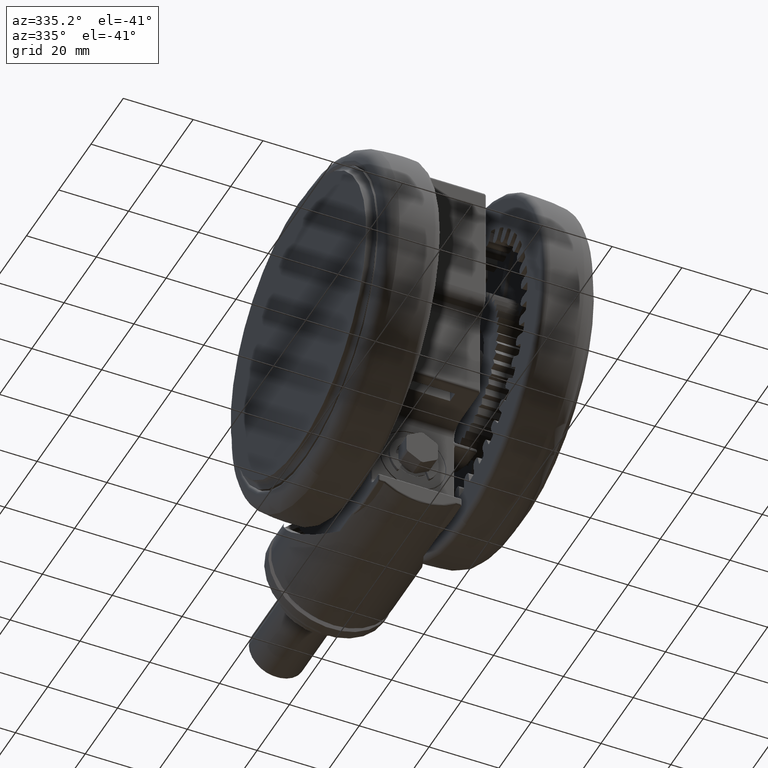
[diagram: clean part render]
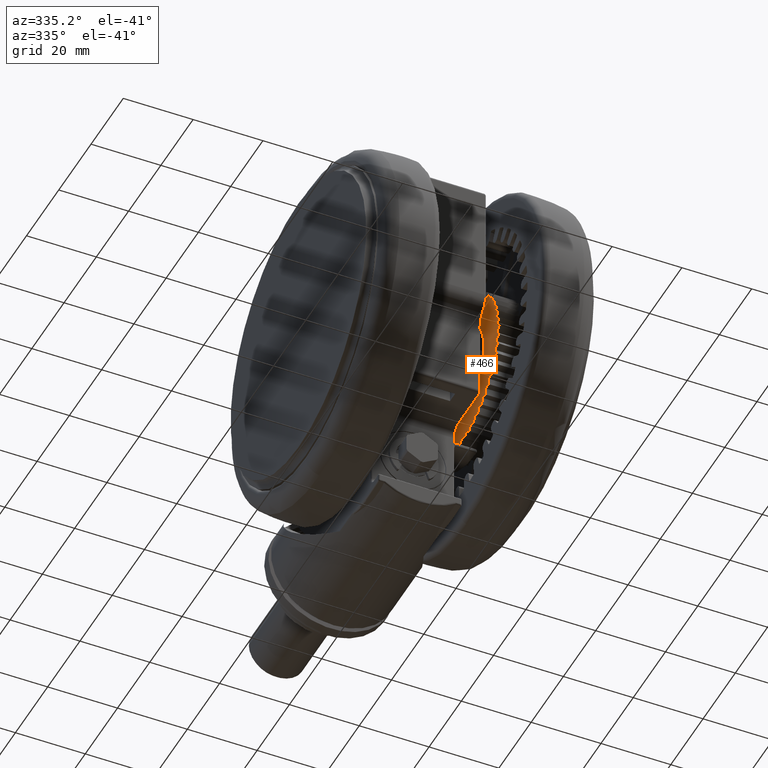
[diagram: same view with one face highlighted and labeled with its STEP entity id]
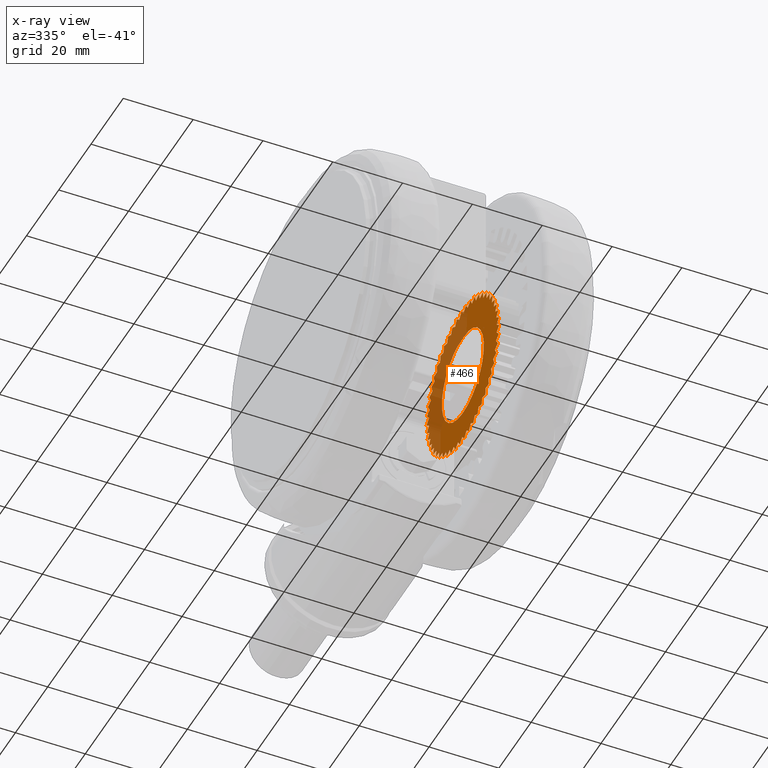
[diagram: x-ray of the same camera — body ghosted, the highlighted face saturated]
A machine part, auxiliary view. The second image highlights one B-rep face of the part: STEP entity #466.
The next image is the same camera in x-ray: the body ghosted, the highlighted face saturated — about 38% of this face is hidden behind the body in this view.
In plain terms, the highlighted planar face has unit normal (-1, -0, 0).
Its self-contained STEP definition (entity closure, byte-faithful):
#79 = DIRECTION ( 'NONE',  ( -0.0000000000000000000, 0.0000000000000000000, -1.000000000000000000 ) ) ;
#273 = CARTESIAN_POINT ( 'NONE',  ( 4.330216740733305900E-014, -13.00000000000013900, -18.09999999999995200 ) ) ;
#278 = DIRECTION ( 'NONE',  ( -0.2645463737174710300, -0.9643729652748132000, 0.0000000000000000000 ) ) ;
#325 = VECTOR ( 'NONE', #77778, 1000.000000000000000 ) ;
#466 = ADVANCED_FACE ( 'NONE', ( #11381, #9404 ), #7524, .T. ) ;
#543 = DIRECTION ( 'NONE',  ( 3.597816489175897900E-015, -1.000000000000000000, 0.0000000000000000000 ) ) ;
#658 = VECTOR ( 'NONE', #19376, 999.9999999999998900 ) ;
#738 = EDGE_CURVE ( 'NONE', #60218, #65271, #25188, .T. ) ;
#773 = VERTEX_POINT ( 'NONE', #55027 ) ;
#862 = DIRECTION ( 'NONE',  ( -0.9852291152350584100, -0.1712413223878625500, 0.0000000000000000000 ) ) ;
#887 = CARTESIAN_POINT ( 'NONE',  ( 9.580034060214153200, 20.35860868048529700, -18.09999999999995200 ) ) ;
#889 = DIRECTION ( 'NONE',  ( -0.0000000000000000000, 0.0000000000000000000, -1.000000000000000000 ) ) ;
#904 = ORIENTED_EDGE ( 'NONE', *, *, #62719, .F. ) ;
#983 = DIRECTION ( 'NONE',  ( -0.6009783641724981700, -0.7992652912497503200, 0.0000000000000000000 ) ) ;
#1035 = VERTEX_POINT ( 'NONE', #45845 ) ;
#1087 = DIRECTION ( 'NONE',  ( 0.5744339357106679200, 0.8185509474088661400, 0.0000000000000000000 ) ) ;
#1121 = DIRECTION ( 'NONE',  ( -0.0000000000000000000, 0.0000000000000000000, -1.000000000000000000 ) ) ;
#1156 = EDGE_CURVE ( 'NONE', #64414, #7117, #77401, .T. ) ;
#1190 = EDGE_CURVE ( 'NONE', #36340, #12239, #33022, .T. ) ;
#1238 = CARTESIAN_POINT ( 'NONE',  ( 12.69825900299367100, 7.254712998370417900, -18.09999999999995200 ) ) ;
#1241 = ORIENTED_EDGE ( 'NONE', *, *, #48178, .T. ) ;
#1268 = EDGE_CURVE ( 'NONE', #78269, #21536, #79574, .T. ) ;
#1331 = CARTESIAN_POINT ( 'NONE',  ( -17.73075838956596300, -11.25256446019484200, -18.09999999999995200 ) ) ;
#1578 = ORIENTED_EDGE ( 'NONE', *, *, #77978, .T. ) ;
#1596 = CARTESIAN_POINT ( 'NONE',  ( 10.49514608897152000, 10.18472144768717900, -18.09999999999995200 ) ) ;
#1604 = CARTESIAN_POINT ( 'NONE',  ( -12.34368362556614500, 16.98921641959761800, -18.09999999999995200 ) ) ;
#1614 = CARTESIAN_POINT ( 'NONE',  ( -19.00146984768217000, -8.941148898638728000, -18.09999999999995200 ) ) ;
#1716 = ORIENTED_EDGE ( 'NONE', *, *, #33966, .F. ) ;
#1829 = CARTESIAN_POINT ( 'NONE',  ( 6.008894022339734200, -13.33303547674457900, -18.09999999999995200 ) ) ;
#1923 = VECTOR ( 'NONE', #41551, 999.9999999999998900 ) ;
#2005 = CARTESIAN_POINT ( 'NONE',  ( -3.469446951953614200E-015, -1.387778780781445700E-013, -18.09999999999995200 ) ) ;
#2252 = EDGE_CURVE ( 'NONE', #75221, #64737, #8305, .T. ) ;
#2262 = CARTESIAN_POINT ( 'NONE',  ( -2.631760822178898600, -20.83443867674025200, -18.09999999999995200 ) ) ;
#2269 = EDGE_CURVE ( 'NONE', #78227, #10159, #6297, .T. ) ;
#2273 = VECTOR ( 'NONE', #56294, 1000.000000000000100 ) ;
#2430 = CARTESIAN_POINT ( 'NONE',  ( -3.469446951953614200E-015, -1.387778780781445700E-013, -18.09999999999995200 ) ) ;
#2485 = DIRECTION ( 'NONE',  ( -0.0000000000000000000, 0.0000000000000000000, -1.000000000000000000 ) ) ;
#2551 = EDGE_CURVE ( 'NONE', #74927, #65868, #20146, .T. ) ;
#2576 = DIRECTION ( 'NONE',  ( 3.597816489175897900E-015, -1.000000000000000000, 0.0000000000000000000 ) ) ;
#2591 = CARTESIAN_POINT ( 'NONE',  ( -12.92942419941392800, 6.834225067075563800, -18.09999999999995200 ) ) ;
#2616 = DIRECTION ( 'NONE',  ( -0.9458589912725776600, -0.3245778313884388200, 0.0000000000000000000 ) ) ;
#2632 = CARTESIAN_POINT ( 'NONE',  ( 16.18093042043164700, 13.38571965675162000, -18.09999999999995200 ) ) ;
#2635 = CIRCLE ( 'NONE', #51589, 21.00000000000000000 ) ;
#2729 = VERTEX_POINT ( 'NONE', #68745 ) ;
#2768 = CARTESIAN_POINT ( 'NONE',  ( -0.0002389668261978448300, -20.99999999864048700, -18.09999999999995200 ) ) ;
#2814 = DIRECTION ( 'NONE',  ( 0.1415923644446495100, -0.9899250488450999100, 0.0000000000000000000 ) ) ;
#2940 = VERTEX_POINT ( 'NONE', #1604 ) ;
#2980 = ORIENTED_EDGE ( 'NONE', *, *, #42927, .F. ) ;
#3004 = VERTEX_POINT ( 'NONE', #65436 ) ;
#3065 = CARTESIAN_POINT ( 'NONE',  ( 7.730393420141976600, 19.52539417194493900, -18.09999999999995200 ) ) ;
#3271 = VECTOR ( 'NONE', #17094, 1000.000000000000100 ) ;
#3275 = ORIENTED_EDGE ( 'NONE', *, *, #13513, .T. ) ;
#3300 = CARTESIAN_POINT ( 'NONE',  ( 20.95854629078559500, 1.318839405309598600, -18.09999999999995200 ) ) ;
#3321 = LINE ( 'NONE', #18468, #49763 ) ;
#3418 = CARTESIAN_POINT ( 'NONE',  ( 20.95854629078560200, -1.318839405310017400, -18.09999999999995200 ) ) ;
#3477 = VECTOR ( 'NONE', #52313, 999.9999999999998900 ) ;
#3486 = ORIENTED_EDGE ( 'NONE', *, *, #1190, .F. ) ;
#3545 = DIRECTION ( 'NONE',  ( 3.597816489175897900E-015, -1.000000000000000000, 0.0000000000000000000 ) ) ;
#3552 = VERTEX_POINT ( 'NONE', #15989 ) ;
#3573 = CARTESIAN_POINT ( 'NONE',  ( 19.71690030098695700, 10.83945766728843200, -18.09999999999995200 ) ) ;
#3639 = EDGE_CURVE ( 'NONE', #54506, #62010, #45637, .T. ) ;
#3749 = AXIS2_PLACEMENT_3D ( 'NONE', #20277, #70726, #32968 ) ;
#3785 = AXIS2_PLACEMENT_3D ( 'NONE', #57519, #19744, #63872 ) ;
#3891 = CARTESIAN_POINT ( 'NONE',  ( -3.469446951953614200E-015, -1.387778780781445700E-013, -18.09999999999995200 ) ) ;
#3896 = VERTEX_POINT ( 'NONE', #39107 ) ;
#3917 = CARTESIAN_POINT ( 'NONE',  ( -4.290439648676073900, 13.98101462759052500, -18.09999999999995200 ) ) ;
#3972 = DIRECTION ( 'NONE',  ( -0.0000000000000000000, 0.0000000000000000000, -1.000000000000000000 ) ) ;
#4044 = DIRECTION ( 'NONE',  ( 0.9852291152350595200, 0.1712413223878559200, 0.0000000000000000000 ) ) ;
#4164 = DIRECTION ( 'NONE',  ( 0.9989225180424556900, -0.04640908259942007300, 0.0000000000000000000 ) ) ;
#4254 = EDGE_CURVE ( 'NONE', #69430, #74684, #18887, .T. ) ;
#4265 = VERTEX_POINT ( 'NONE', #17533 ) ;
#4395 = CARTESIAN_POINT ( 'NONE',  ( -2.504322478768356200, -14.40850482590666600, -18.09999999999995200 ) ) ;
#4404 = CARTESIAN_POINT ( 'NONE',  ( -16.40179411698189700, -15.40230988339549600, -18.09999999999995200 ) ) ;
#4498 = AXIS2_PLACEMENT_3D ( 'NONE', #37626, #81728, #43982 ) ;
#4626 = DIRECTION ( 'NONE',  ( -0.0000000000000000000, 0.0000000000000000000, -1.000000000000000000 ) ) ;
#4670 = EDGE_CURVE ( 'NONE', #6977, #59428, #75048, .T. ) ;
#4760 = ORIENTED_EDGE ( 'NONE', *, *, #62141, .T. ) ;
#4802 = VECTOR ( 'NONE', #23766, 1000.000000000000100 ) ;
#4877 = DIRECTION ( 'NONE',  ( -0.4960649668394147000, -0.8682854073832004800, 0.0000000000000000000 ) ) ;
#4907 = VERTEX_POINT ( 'NONE', #73473 ) ;
#4921 = EDGE_CURVE ( 'NONE', #11336, #70590, #23704, .T. ) ;
#5051 = ORIENTED_EDGE ( 'NONE', *, *, #13817, .F. ) ;
#5158 = AXIS2_PLACEMENT_3D ( 'NONE', #13509, #57646, #19869 ) ;
#5247 = VECTOR ( 'NONE', #29099, 999.9999999999998900 ) ;
#5292 = VERTEX_POINT ( 'NONE', #46136 ) ;
#5313 = VECTOR ( 'NONE', #983, 1000.000000000000100 ) ;
#5320 = EDGE_CURVE ( 'NONE', #46195, #24445, #34678, .T. ) ;
#5369 = ORIENTED_EDGE ( 'NONE', *, *, #21372, .T. ) ;
#5497 = ORIENTED_EDGE ( 'NONE', *, *, #16853, .T. ) ;
#5507 = CARTESIAN_POINT ( 'NONE',  ( -5.222256170880211100, -20.34030581101740500, -18.09999999999995200 ) ) ;
#5574 = CARTESIAN_POINT ( 'NONE',  ( -4.746795621064244100, -13.83273558366835600, -18.09999999999995200 ) ) ;
#5612 = EDGE_CURVE ( 'NONE', #29275, #50214, #61219, .T. ) ;
#5625 = VERTEX_POINT ( 'NONE', #74183 ) ;
#5754 = CARTESIAN_POINT ( 'NONE',  ( -3.469446951953614200E-015, -1.387778780781445700E-013, -18.09999999999995200 ) ) ;
#5832 = CARTESIAN_POINT ( 'NONE',  ( -20.62798748604893700, -3.935242340111933000, -18.09999999999995200 ) ) ;
#5910 = VECTOR ( 'NONE', #34414, 1000.000000000000200 ) ;
#6040 = CIRCLE ( 'NONE', #15693, 21.00000000000000000 ) ;
#6047 = EDGE_CURVE ( 'NONE', #13246, #14077, #63130, .T. ) ;
#6112 = AXIS2_PLACEMENT_3D ( 'NONE', #2005, #46266, #8417 ) ;
#6116 = VERTEX_POINT ( 'NONE', #12286 ) ;
#6181 = EDGE_CURVE ( 'NONE', #44355, #61777, #38445, .T. ) ;
#6185 = EDGE_CURVE ( 'NONE', #60170, #58319, #71993, .T. ) ;
#6233 = EDGE_CURVE ( 'NONE', #75329, #22714, #36472, .T. ) ;
#6237 = CARTESIAN_POINT ( 'NONE',  ( 17.73075838956578900, -11.25256446019511400, -18.09999999999995200 ) ) ;
#6297 = CIRCLE ( 'NONE', #32470, 21.00000000000000000 ) ;
#6566 = CARTESIAN_POINT ( 'NONE',  ( -16.18062577405640200, -13.38608791095983900, -18.09999999999995200 ) ) ;
#6642 = CARTESIAN_POINT ( 'NONE',  ( 10.82361990185115100, -9.834932364591569600, -18.09999999999995200 ) ) ;
#6721 = DIRECTION ( 'NONE',  ( 0.3528216945604031300, 0.9356905748416650700, 0.0000000000000000000 ) ) ;
#6813 = CIRCLE ( 'NONE', #36477, 21.00000000000000000 ) ;
#6834 = ORIENTED_EDGE ( 'NONE', *, *, #43433, .F. ) ;
#6842 = VECTOR ( 'NONE', #67492, 1000.000000000000100 ) ;
#6909 = DIRECTION ( 'NONE',  ( -0.0000000000000000000, 0.0000000000000000000, -1.000000000000000000 ) ) ;
#6977 = VERTEX_POINT ( 'NONE', #27633 ) ;
#7021 = CARTESIAN_POINT ( 'NONE',  ( 6.443067199534013400, -13.12872908769651700, -18.09999999999995200 ) ) ;
#7090 = ORIENTED_EDGE ( 'NONE', *, *, #21718, .T. ) ;
#7117 = VERTEX_POINT ( 'NONE', #29518 ) ;
#7237 = LINE ( 'NONE', #14688, #55677 ) ;
#7286 = LINE ( 'NONE', #6642, #72501 ) ;
#7300 = VECTOR ( 'NONE', #4877, 1000.000000000000100 ) ;
#7314 = ORIENTED_EDGE ( 'NONE', *, *, #53594, .T. ) ;
#7316 = ORIENTED_EDGE ( 'NONE', *, *, #8580, .F. ) ;
#7346 = VERTEX_POINT ( 'NONE', #19310 ) ;
#7367 = DIRECTION ( 'NONE',  ( 0.9559980607330609300, 0.2933729842276324700, 0.0000000000000000000 ) ) ;
#7460 = EDGE_CURVE ( 'NONE', #71863, #68147, #77696, .T. ) ;
#7524 = PLANE ( 'NONE',  #3749 ) ;
#7608 = VECTOR ( 'NONE', #69333, 999.9999999999998900 ) ;
#7679 = CIRCLE ( 'NONE', #35540, 21.00000000000000000 ) ;
#7988 = VECTOR ( 'NONE', #79423, 1000.000000000000000 ) ;
#8034 = VECTOR ( 'NONE', #28286, 999.9999999999998900 ) ;
#8039 = ORIENTED_EDGE ( 'NONE', *, *, #26613, .T. ) ;
#8044 = VERTEX_POINT ( 'NONE', #74384 ) ;
#8139 = EDGE_CURVE ( 'NONE', #31002, #56674, #40707, .T. ) ;
#8160 = AXIS2_PLACEMENT_3D ( 'NONE', #15437, #59539, #21770 ) ;
#8208 = ORIENTED_EDGE ( 'NONE', *, *, #29873, .T. ) ;
#8304 = VECTOR ( 'NONE', #53958, 1000.000000000000100 ) ;
#8305 = LINE ( 'NONE', #23031, #39935 ) ;
#8394 = EDGE_CURVE ( 'NONE', #69950, #60465, #22903, .T. ) ;
#8417 = DIRECTION ( 'NONE',  ( 3.597816489175897900E-015, -1.000000000000000000, 0.0000000000000000000 ) ) ;
#8431 = CARTESIAN_POINT ( 'NONE',  ( -2.631760822178748500, 20.83443867674000000, -18.09999999999995200 ) ) ;
#8478 = ORIENTED_EDGE ( 'NONE', *, *, #15846, .F. ) ;
#8489 = LINE ( 'NONE', #66637, #56889 ) ;
#8494 = EDGE_CURVE ( 'NONE', #21536, #38267, #54519, .T. ) ;
#8551 = CARTESIAN_POINT ( 'NONE',  ( 20.62798748604885900, -3.935242340112228700, -18.09999999999995200 ) ) ;
#8580 = EDGE_CURVE ( 'NONE', #77143, #66173, #78118, .T. ) ;
#8826 = DIRECTION ( 'NONE',  ( 3.597816489175897900E-015, -1.000000000000000000, 0.0000000000000000000 ) ) ;
#8857 = CARTESIAN_POINT ( 'NONE',  ( 20.62807704188493600, 3.934772871978680500, -18.09999999999995200 ) ) ;
#9019 = EDGE_CURVE ( 'NONE', #18867, #3004, #78042, .T. ) ;
#9022 = VERTEX_POINT ( 'NONE', #66497 ) ;
#9042 = CARTESIAN_POINT ( 'NONE',  ( 19.97211299609482200, 6.489584152410633200, -18.09999999999995200 ) ) ;
#9116 = LINE ( 'NONE', #20595, #42723 ) ;
#9160 = CARTESIAN_POINT ( 'NONE',  ( -6.443067199534176800, -13.12872908769642200, -18.09999999999995200 ) ) ;
#9164 = CARTESIAN_POINT ( 'NONE',  ( -6.008894022339915400, -13.33303547674450100, -18.09999999999995200 ) ) ;
#9180 = LINE ( 'NONE', #1238, #40796 ) ;
#9291 = DIRECTION ( 'NONE',  ( 0.9968623160129352900, 0.07915505614505564900, 0.0000000000000000000 ) ) ;
#9404 = FACE_BOUND ( 'NONE', #38686, .T. ) ;
#9441 = EDGE_CURVE ( 'NONE', #25731, #29275, #50346, .T. ) ;
#9474 = ORIENTED_EDGE ( 'NONE', *, *, #18534, .F. ) ;
#9551 = CARTESIAN_POINT ( 'NONE',  ( 11.97091630120698700, 8.400821704174525500, -18.09999999999995200 ) ) ;
#9697 = CARTESIAN_POINT ( 'NONE',  ( 2.632234987181226900, 20.83437877576997000, -18.09999999999995200 ) ) ;
#9702 = CARTESIAN_POINT ( 'NONE',  ( -12.05610288702757800, -18.99737832379538500, -18.09999999999995200 ) ) ;
#9791 = DIRECTION ( 'NONE',  ( -0.0000000000000000000, 0.0000000000000000000, -1.000000000000000000 ) ) ;
#9808 = LINE ( 'NONE', #28260, #11766 ) ;
#9920 = DIRECTION ( 'NONE',  ( -0.0000000000000000000, 0.0000000000000000000, -1.000000000000000000 ) ) ;
#9957 = DIRECTION ( 'NONE',  ( 0.8977202214608007700, 0.4405660041133118700, 0.0000000000000000000 ) ) ;
#10159 = VERTEX_POINT ( 'NONE', #36309 ) ;
#10189 = EDGE_CURVE ( 'NONE', #38566, #6116, #28515, .T. ) ;
#10217 = VERTEX_POINT ( 'NONE', #18081 ) ;
#10238 = CARTESIAN_POINT ( 'NONE',  ( -3.469446951953614200E-015, -1.387778780781445700E-013, -18.09999999999995200 ) ) ;
#10294 = CARTESIAN_POINT ( 'NONE',  ( 4.216079578178665500, -22.10146314139567600, -18.09999999999995200 ) ) ;
#10295 = DIRECTION ( 'NONE',  ( 3.597816489175897900E-015, -1.000000000000000000, 0.0000000000000000000 ) ) ;
#10307 = DIRECTION ( 'NONE',  ( -0.0000000000000000000, 0.0000000000000000000, -1.000000000000000000 ) ) ;
#10320 = ORIENTED_EDGE ( 'NONE', *, *, #37511, .F. ) ;
#10405 = CARTESIAN_POINT ( 'NONE',  ( -3.469446951953614200E-015, -1.387778780781445700E-013, -18.09999999999995200 ) ) ;
#10581 = DIRECTION ( 'NONE',  ( -0.0000000000000000000, 0.0000000000000000000, -1.000000000000000000 ) ) ;
#10605 = CARTESIAN_POINT ( 'NONE',  ( -20.62807704188491800, 3.934772871978681400, -18.09999999999995200 ) ) ;
#10625 = ORIENTED_EDGE ( 'NONE', *, *, #45702, .T. ) ;
#10762 = LINE ( 'NONE', #30413, #77888 ) ;
#10766 = DIRECTION ( 'NONE',  ( 0.2327664647555141000, 0.9725326590327031400, 0.0000000000000000000 ) ) ;
#10797 = ORIENTED_EDGE ( 'NONE', *, *, #48361, .F. ) ;
#11119 = CARTESIAN_POINT ( 'NONE',  ( -6.008894022339831100, 13.33303547674424100, -18.09999999999995200 ) ) ;
#11122 = EDGE_CURVE ( 'NONE', #68715, #17742, #2635, .T. ) ;
#11199 = VERTEX_POINT ( 'NONE', #79666 ) ;
#11254 = VECTOR ( 'NONE', #20633, 999.9999999999998900 ) ;
#11274 = CIRCLE ( 'NONE', #18537, 21.00000000000000000 ) ;
#11334 = CIRCLE ( 'NONE', #25637, 21.00000000000000000 ) ;
#11336 = VERTEX_POINT ( 'NONE', #68308 ) ;
#11358 = CIRCLE ( 'NONE', #78200, 21.00000000000000000 ) ;
#11381 = FACE_OUTER_BOUND ( 'NONE', #81230, .T. ) ;
#11438 = AXIS2_PLACEMENT_3D ( 'NONE', #48371, #10581, #54780 ) ;
#11474 = DIRECTION ( 'NONE',  ( -0.9968623160129358500, -0.07915505614504829400, 0.0000000000000000000 ) ) ;
#11540 = CARTESIAN_POINT ( 'NONE',  ( 14.10349360292788000, 3.868864250397976900, -18.09999999999995200 ) ) ;
#11545 = CARTESIAN_POINT ( 'NONE',  ( -3.469446951953614200E-015, -1.387778780781445700E-013, -18.09999999999995200 ) ) ;
#11701 = VERTEX_POINT ( 'NONE', #61364 ) ;
#11731 = ORIENTED_EDGE ( 'NONE', *, *, #18582, .T. ) ;
#11766 = VECTOR ( 'NONE', #34622, 999.9999999999998900 ) ;
#11876 = LINE ( 'NONE', #63106, #43503 ) ;
#11965 = CARTESIAN_POINT ( 'NONE',  ( 7.632584547731982000, 12.47478639166040900, -18.09999999999995200 ) ) ;
#11983 = VERTEX_POINT ( 'NONE', #15003 ) ;
#12023 = VECTOR ( 'NONE', #41122, 999.9999999999998900 ) ;
#12135 = DIRECTION ( 'NONE',  ( 3.597816489175897900E-015, -1.000000000000000000, 0.0000000000000000000 ) ) ;
#12239 = VERTEX_POINT ( 'NONE', #61859 ) ;
#12241 = DIRECTION ( 'NONE',  ( 0.9559980607330593700, -0.2933729842276376300, 0.0000000000000000000 ) ) ;
#12286 = CARTESIAN_POINT ( 'NONE',  ( -20.62798748604891600, 3.935242340111816600, -18.09999999999995200 ) ) ;
#12501 = EDGE_CURVE ( 'NONE', #15893, #50479, #36064, .T. ) ;
#12629 = LINE ( 'NONE', #11540, #79777 ) ;
#12738 = VERTEX_POINT ( 'NONE', #63306 ) ;
#12904 = DIRECTION ( 'NONE',  ( -0.0000000000000000000, 0.0000000000000000000, -1.000000000000000000 ) ) ;
#12924 = VERTEX_POINT ( 'NONE', #35189 ) ;
#12994 = VECTOR ( 'NONE', #61305, 1000.000000000000100 ) ;
#13134 = EDGE_CURVE ( 'NONE', #81275, #69456, #22108, .T. ) ;
#13246 = VERTEX_POINT ( 'NONE', #13571 ) ;
#13286 = CARTESIAN_POINT ( 'NONE',  ( -3.469446951953614200E-015, -1.387778780781445700E-013, -18.09999999999995200 ) ) ;
#13314 = VERTEX_POINT ( 'NONE', #64611 ) ;
#13407 = DIRECTION ( 'NONE',  ( 0.9116903457277396600, -0.4108779788536183200, 0.0000000000000000000 ) ) ;
#13509 = CARTESIAN_POINT ( 'NONE',  ( -3.469446951953614200E-015, -1.387778780781445700E-013, -18.09999999999995200 ) ) ;
#13513 = EDGE_CURVE ( 'NONE', #78360, #32933, #15156, .T. ) ;
#13571 = CARTESIAN_POINT ( 'NONE',  ( -22.32258077957579400, -2.819997755196753900, -18.09999999999995200 ) ) ;
#13817 = EDGE_CURVE ( 'NONE', #8044, #11199, #30019, .T. ) ;
#13878 = CARTESIAN_POINT ( 'NONE',  ( 9.135904655321338600, -11.41980247310420700, -18.09999999999995200 ) ) ;
#13884 = VECTOR ( 'NONE', #81299, 1000.000000000000100 ) ;
#13931 = CIRCLE ( 'NONE', #63917, 21.00000000000000000 ) ;
#14017 = VECTOR ( 'NONE', #79885, 1000.000000000000000 ) ;
#14077 = VERTEX_POINT ( 'NONE', #54860 ) ;
#14188 = LINE ( 'NONE', #49067, #79330 ) ;
#14209 = AXIS2_PLACEMENT_3D ( 'NONE', #63621, #25842, #69936 ) ;
#14246 = CARTESIAN_POINT ( 'NONE',  ( 19.00146984768211700, 8.941148898638587600, -18.09999999999995200 ) ) ;
#14320 = AXIS2_PLACEMENT_3D ( 'NONE', #31894, #76007, #38246 ) ;
#14459 = VECTOR ( 'NONE', #12241, 1000.000000000000100 ) ;
#14548 = ORIENTED_EDGE ( 'NONE', *, *, #6047, .F. ) ;
#14563 = AXIS2_PLACEMENT_3D ( 'NONE', #29734, #73880, #36124 ) ;
#14688 = CARTESIAN_POINT ( 'NONE',  ( 14.53732064245325100, 1.594663266754988700, -18.09999999999995200 ) ) ;
#14715 = AXIS2_PLACEMENT_3D ( 'NONE', #47629, #9791, #54001 ) ;
#14889 = VERTEX_POINT ( 'NONE', #31283 ) ;
#15003 = CARTESIAN_POINT ( 'NONE',  ( 14.34203976934553500, 17.33654796245511400, -18.09999999999995200 ) ) ;
#15007 = LINE ( 'NONE', #40926, #48555 ) ;
#15031 = ORIENTED_EDGE ( 'NONE', *, *, #73001, .T. ) ;
#15156 = LINE ( 'NONE', #35618, #63506 ) ;
#15335 = CARTESIAN_POINT ( 'NONE',  ( -3.469446951953614200E-015, -1.387778780781445700E-013, -18.09999999999995200 ) ) ;
#15371 = CIRCLE ( 'NONE', #64281, 21.00000000000000000 ) ;
#15437 = CARTESIAN_POINT ( 'NONE',  ( -3.469446951953614200E-015, -1.387778780781445700E-013, -18.09999999999995200 ) ) ;
#15537 = LINE ( 'NONE', #26522, #61913 ) ;
#15574 = LINE ( 'NONE', #41359, #61947 ) ;
#15693 = AXIS2_PLACEMENT_3D ( 'NONE', #3891, #48116, #10295 ) ;
#15794 = EDGE_CURVE ( 'NONE', #36340, #9022, #18158, .T. ) ;
#15812 = CARTESIAN_POINT ( 'NONE',  ( 14.37566342289094100, 15.30817759080916200, -18.09999999999995200 ) ) ;
#15846 = EDGE_CURVE ( 'NONE', #43627, #17742, #14188, .T. ) ;
#15893 = VERTEX_POINT ( 'NONE', #68329 ) ;
#15977 = DIRECTION ( 'NONE',  ( -0.0000000000000000000, 0.0000000000000000000, -1.000000000000000000 ) ) ;
#15983 = DIRECTION ( 'NONE',  ( -0.7808667188357977200, -0.6246976608045008400, 0.0000000000000000000 ) ) ;
#15989 = CARTESIAN_POINT ( 'NONE',  ( -19.00126635343028500, 8.941581345936272700, -18.09999999999995200 ) ) ;
#16008 = AXIS2_PLACEMENT_3D ( 'NONE', #18395, #62508, #24713 ) ;
#16119 = CARTESIAN_POINT ( 'NONE',  ( -18.20288237343635300, 13.22516817658047500, -18.09999999999995200 ) ) ;
#16185 = VECTOR ( 'NONE', #10766, 1000.000000000000100 ) ;
#16266 = ORIENTED_EDGE ( 'NONE', *, *, #12501, .F. ) ;
#16339 = LINE ( 'NONE', #72540, #81436 ) ;
#16346 = CARTESIAN_POINT ( 'NONE',  ( 13.50738607663565800, -5.605993558018629300, -18.09999999999995200 ) ) ;
#16439 = ORIENTED_EDGE ( 'NONE', *, *, #1156, .F. ) ;
#16505 = CARTESIAN_POINT ( 'NONE',  ( 11.68887279930208900, -8.789021280983096300, -18.09999999999995200 ) ) ;
#16566 = CARTESIAN_POINT ( 'NONE',  ( -12.34329696911954200, -16.98949734195008100, -18.09999999999995200 ) ) ;
#16621 = DIRECTION ( 'NONE',  ( 3.597816489175897900E-015, -1.000000000000000000, 0.0000000000000000000 ) ) ;
#16775 = DIRECTION ( 'NONE',  ( 3.597816489175897900E-015, -1.000000000000000000, 0.0000000000000000000 ) ) ;
#16808 = ORIENTED_EDGE ( 'NONE', *, *, #4670, .T. ) ;
#16853 = EDGE_CURVE ( 'NONE', #64414, #67991, #61532, .T. ) ;
#16872 = CARTESIAN_POINT ( 'NONE',  ( -3.469446951953614200E-015, -1.387778780781445700E-013, -18.09999999999995200 ) ) ;
#16922 = CIRCLE ( 'NONE', #59581, 21.00000000000000000 ) ;
#16950 = CARTESIAN_POINT ( 'NONE',  ( -16.18093042043175300, -13.38571965675175900, -18.09999999999995200 ) ) ;
#16961 = DIRECTION ( 'NONE',  ( 0.7808667188357982800, -0.6246976608045002900, 0.0000000000000000000 ) ) ;
#17021 = VERTEX_POINT ( 'NONE', #4404 ) ;
#17094 = DIRECTION ( 'NONE',  ( -0.3833283286444206800, 0.9236121439536593100, 0.0000000000000000000 ) ) ;
#17139 = CARTESIAN_POINT ( 'NONE',  ( -14.22282522343163600, 3.404098274073775500, -18.09999999999995200 ) ) ;
#17192 = DIRECTION ( 'NONE',  ( -0.0000000000000000000, 0.0000000000000000000, -1.000000000000000000 ) ) ;
#17258 = VERTEX_POINT ( 'NONE', #38366 ) ;
#17282 = DIRECTION ( 'NONE',  ( -0.0000000000000000000, 0.0000000000000000000, -1.000000000000000000 ) ) ;
#17417 = CARTESIAN_POINT ( 'NONE',  ( -3.469446951953614200E-015, -1.387778780781445700E-013, -18.09999999999995200 ) ) ;
#17509 = AXIS2_PLACEMENT_3D ( 'NONE', #76212, #38450, #543 ) ;
#17510 = CARTESIAN_POINT ( 'NONE',  ( -12.34329696911942300, 16.98949734194991400, -18.09999999999995200 ) ) ;
#17533 = CARTESIAN_POINT ( 'NONE',  ( -19.00146984768208500, 8.941148898638593000, -18.09999999999995200 ) ) ;
#17560 = ORIENTED_EDGE ( 'NONE', *, *, #64087, .T. ) ;
#17620 = ORIENTED_EDGE ( 'NONE', *, *, #30859, .F. ) ;
#17694 = CARTESIAN_POINT ( 'NONE',  ( -4.290439648676153800, -13.98101462759079400, -18.09999999999995200 ) ) ;
#17711 = VECTOR ( 'NONE', #13407, 1000.000000000000200 ) ;
#17734 = EDGE_CURVE ( 'NONE', #2729, #33514, #15007, .T. ) ;
#17742 = VERTEX_POINT ( 'NONE', #15812 ) ;
#17796 = ORIENTED_EDGE ( 'NONE', *, *, #32081, .F. ) ;
#17805 = LINE ( 'NONE', #13878, #36560 ) ;
#17835 = VERTEX_POINT ( 'NONE', #54743 ) ;
#17859 = EDGE_CURVE ( 'NONE', #67648, #17258, #23867, .T. ) ;
#17922 = AXIS2_PLACEMENT_3D ( 'NONE', #37094, #81196, #43441 ) ;
#17928 = DIRECTION ( 'NONE',  ( 3.597816489175897900E-015, -1.000000000000000000, 0.0000000000000000000 ) ) ;
#18009 = VECTOR ( 'NONE', #52036, 999.9999999999998900 ) ;
#18081 = CARTESIAN_POINT ( 'NONE',  ( -20.95854629078560200, -1.318839405309724100, -18.09999999999995200 ) ) ;
#18158 = LINE ( 'NONE', #54922, #3271 ) ;
#18194 = DIRECTION ( 'NONE',  ( 0.6724959896283672100, 0.7401007660675422700, 0.0000000000000000000 ) ) ;
#18210 = ORIENTED_EDGE ( 'NONE', *, *, #8494, .T. ) ;
#18277 = VERTEX_POINT ( 'NONE', #78331 ) ;
#18395 = CARTESIAN_POINT ( 'NONE',  ( -3.469446951953614200E-015, -1.387778780781445700E-013, -18.09999999999995200 ) ) ;
#18444 = CIRCLE ( 'NONE', #41930, 21.00000000000000000 ) ;
#18468 = CARTESIAN_POINT ( 'NONE',  ( -10.82361990185107800, 9.834932364591363600, -18.09999999999995200 ) ) ;
#18495 = EDGE_CURVE ( 'NONE', #70209, #37851, #45489, .T. ) ;
#18506 = CARTESIAN_POINT ( 'NONE',  ( 2.975664240051755000, 14.31859157620989200, -18.09999999999995200 ) ) ;
#18525 = CIRCLE ( 'NONE', #57666, 21.00000000000000000 ) ;
#18534 = EDGE_CURVE ( 'NONE', #28182, #12924, #11876, .T. ) ;
#18537 = AXIS2_PLACEMENT_3D ( 'NONE', #71928, #34192, #78267 ) ;
#18582 = EDGE_CURVE ( 'NONE', #15893, #12738, #39534, .T. ) ;
#18672 = CARTESIAN_POINT ( 'NONE',  ( 6.952882373436183100, -21.39877161664116300, -18.09999999999995200 ) ) ;
#18711 = CARTESIAN_POINT ( 'NONE',  ( 12.69825900299362300, -7.254712998370743000, -18.09999999999995200 ) ) ;
#18803 = EDGE_CURVE ( 'NONE', #54664, #34183, #57269, .T. ) ;
#18867 = VERTEX_POINT ( 'NONE', #80691 ) ;
#18887 = LINE ( 'NONE', #74046, #50459 ) ;
#18916 = CARTESIAN_POINT ( 'NONE',  ( -20.91997093248572500, -8.282802435405193000, -18.09999999999995200 ) ) ;
#19036 = LINE ( 'NONE', #80973, #50621 ) ;
#19310 = CARTESIAN_POINT ( 'NONE',  ( -19.97226068571552900, -6.489129610496601000, -18.09999999999995200 ) ) ;
#19376 = DIRECTION ( 'NONE',  ( -0.2327664647555010800, 0.9725326590327062500, 0.0000000000000000000 ) ) ;
#19469 = ORIENTED_EDGE ( 'NONE', *, *, #23984, .T. ) ;
#19506 = LINE ( 'NONE', #76144, #34324 ) ;
#19621 = VERTEX_POINT ( 'NONE', #50823 ) ;
#19629 = EDGE_CURVE ( 'NONE', #52139, #45795, #79813, .T. ) ;
#19665 = DIRECTION ( 'NONE',  ( 3.597816489175897900E-015, -1.000000000000000000, 0.0000000000000000000 ) ) ;
#19680 = ORIENTED_EDGE ( 'NONE', *, *, #27337, .T. ) ;
#19712 = CIRCLE ( 'NONE', #40149, 21.00000000000000000 ) ;
#19744 = DIRECTION ( 'NONE',  ( -0.0000000000000000000, 0.0000000000000000000, -1.000000000000000000 ) ) ;
#19810 = VECTOR ( 'NONE', #1087, 1000.000000000000000 ) ;
#19853 = ORIENTED_EDGE ( 'NONE', *, *, #4921, .T. ) ;
#19860 = ORIENTED_EDGE ( 'NONE', *, *, #6181, .T. ) ;
#19869 = DIRECTION ( 'NONE',  ( 3.597816489175897900E-015, -1.000000000000000000, 0.0000000000000000000 ) ) ;
#19899 = VERTEX_POINT ( 'NONE', #2768 ) ;
#20048 = LINE ( 'NONE', #69751, #38808 ) ;
#20100 = VERTEX_POINT ( 'NONE', #30110 ) ;
#20146 = LINE ( 'NONE', #3917, #5247 ) ;
#20173 = DIRECTION ( 'NONE',  ( 0.1090403687534834400, 0.9940373222279455000, 0.0000000000000000000 ) ) ;
#20242 = LINE ( 'NONE', #1596, #68548 ) ;
#20277 = CARTESIAN_POINT ( 'NONE',  ( -3.469446951953614200E-015, -1.387778780781445700E-013, -18.09999999999995200 ) ) ;
#20302 = CARTESIAN_POINT ( 'NONE',  ( -1.412786689409718300, -22.45560138963624300, -18.09999999999995200 ) ) ;
#20325 = LINE ( 'NONE', #58343, #3477 ) ;
#20523 = CARTESIAN_POINT ( 'NONE',  ( -3.469446951953614200E-015, -1.387778780781445700E-013, -18.09999999999995200 ) ) ;
#20559 = ORIENTED_EDGE ( 'NONE', *, *, #48933, .T. ) ;
#20595 = CARTESIAN_POINT ( 'NONE',  ( 2.975664240051683100, -14.31859157621022900, -18.09999999999995200 ) ) ;
#20633 = DIRECTION ( 'NONE',  ( -0.7599523800599921100, 0.6499787535305698900, 0.0000000000000000000 ) ) ;
#20636 = CARTESIAN_POINT ( 'NONE',  ( -11.68887279930223300, -8.789021280982948900, -18.09999999999995200 ) ) ;
#20670 = ORIENTED_EDGE ( 'NONE', *, *, #63080, .T. ) ;
#20803 = VERTEX_POINT ( 'NONE', #32487 ) ;
#21035 = ORIENTED_EDGE ( 'NONE', *, *, #55036, .T. ) ;
#21082 = EDGE_CURVE ( 'NONE', #25731, #19899, #8489, .T. ) ;
#21106 = ORIENTED_EDGE ( 'NONE', *, *, #44615, .T. ) ;
#21147 = VERTEX_POINT ( 'NONE', #61091 ) ;
#21155 = VERTEX_POINT ( 'NONE', #67452 ) ;
#21183 = AXIS2_PLACEMENT_3D ( 'NONE', #55090, #17282, #61389 ) ;
#21255 = VERTEX_POINT ( 'NONE', #25502 ) ;
#21259 = VERTEX_POINT ( 'NONE', #43442 ) ;
#21332 = CARTESIAN_POINT ( 'NONE',  ( 18.20288237343624300, -13.22516817658087300, -18.09999999999995200 ) ) ;
#21372 = EDGE_CURVE ( 'NONE', #72011, #2940, #40137, .T. ) ;
#21536 = VERTEX_POINT ( 'NONE', #78946 ) ;
#21663 = DIRECTION ( 'NONE',  ( 3.597816489175897900E-015, -1.000000000000000000, 0.0000000000000000000 ) ) ;
#21665 = VECTOR ( 'NONE', #6721, 1000.000000000000100 ) ;
#21677 = LINE ( 'NONE', #36456, #4802 ) ;
#21718 = EDGE_CURVE ( 'NONE', #69430, #24826, #27259, .T. ) ;
#21770 = DIRECTION ( 'NONE',  ( 3.597816489175897900E-015, -1.000000000000000000, 0.0000000000000000000 ) ) ;
#21838 = ORIENTED_EDGE ( 'NONE', *, *, #47592, .T. ) ;
#21839 = CARTESIAN_POINT ( 'NONE',  ( -12.34368362556626200, -16.98921641959783500, -18.09999999999995200 ) ) ;
#21844 = DIRECTION ( 'NONE',  ( -0.9458589912725758900, 0.3245778313884444800, 0.0000000000000000000 ) ) ;
#21853 = EDGE_CURVE ( 'NONE', #61777, #22539, #15371, .T. ) ;
#21919 = CARTESIAN_POINT ( 'NONE',  ( 14.34203976934541700, -17.33654796245548700, -18.09999999999995200 ) ) ;
#22108 = LINE ( 'NONE', #31244, #70442 ) ;
#22338 = DIRECTION ( 'NONE',  ( 0.9989225180424560200, 0.04640908259941409900, 0.0000000000000000000 ) ) ;
#22377 = EDGE_CURVE ( 'NONE', #78734, #59253, #42918, .T. ) ;
#22432 = EDGE_CURVE ( 'NONE', #22861, #53825, #7286, .T. ) ;
#22434 = VERTEX_POINT ( 'NONE', #273 ) ;
#22539 = VERTEX_POINT ( 'NONE', #1614 ) ;
#22567 = CARTESIAN_POINT ( 'NONE',  ( -2.632234987181233600, 20.83437877576994900, -18.09999999999995200 ) ) ;
#22614 = CARTESIAN_POINT ( 'NONE',  ( -11.97091630120693400, -8.400821704174891400, -18.09999999999995200 ) ) ;
#22714 = VERTEX_POINT ( 'NONE', #34851 ) ;
#22837 = CARTESIAN_POINT ( 'NONE',  ( -19.97226068571547600, 6.489129610496469500, -18.09999999999995200 ) ) ;
#22861 = VERTEX_POINT ( 'NONE', #68117 ) ;
#22903 = LINE ( 'NONE', #59703, #8034 ) ;
#23028 = ORIENTED_EDGE ( 'NONE', *, *, #15794, .T. ) ;
#23031 = CARTESIAN_POINT ( 'NONE',  ( -7.632584547731998000, 12.47478639166037200, -18.09999999999995200 ) ) ;
#23085 = VERTEX_POINT ( 'NONE', #57908 ) ;
#23098 = CIRCLE ( 'NONE', #46319, 21.00000000000000000 ) ;
#23162 = ORIENTED_EDGE ( 'NONE', *, *, #5320, .T. ) ;
#23190 = CARTESIAN_POINT ( 'NONE',  ( 12.34329696911929700, -16.98949734195024100, -18.09999999999995200 ) ) ;
#23215 = DIRECTION ( 'NONE',  ( 3.597816489175897900E-015, -1.000000000000000000, 0.0000000000000000000 ) ) ;
#23265 = CARTESIAN_POINT ( 'NONE',  ( 9.505628550926097400, -11.11394026651474400, -18.09999999999995200 ) ) ;
#23266 = LINE ( 'NONE', #42860, #54885 ) ;
#23465 = CARTESIAN_POINT ( 'NONE',  ( -3.469446951953614200E-015, -1.387778780781445700E-013, -18.09999999999995200 ) ) ;
#23610 = LINE ( 'NONE', #39332, #71950 ) ;
#23646 = VECTOR ( 'NONE', #35936, 1000.000000000000100 ) ;
#23686 = VECTOR ( 'NONE', #56980, 1000.000000000000100 ) ;
#23704 = CIRCLE ( 'NONE', #70129, 21.00000000000000000 ) ;
#23713 = ORIENTED_EDGE ( 'NONE', *, *, #18803, .T. ) ;
#23747 = DIRECTION ( 'NONE',  ( 3.597816489175897900E-015, -1.000000000000000000, 0.0000000000000000000 ) ) ;
#23763 = CARTESIAN_POINT ( 'NONE',  ( 18.20288237343634900, 13.22516817658046600, -18.09999999999995200 ) ) ;
#23766 = DIRECTION ( 'NONE',  ( -0.1415923644446424900, 0.9899250488451009100, 0.0000000000000000000 ) ) ;
#23798 = EDGE_CURVE ( 'NONE', #65093, #54446, #31824, .T. ) ;
#23867 = CIRCLE ( 'NONE', #28702, 21.00000000000000000 ) ;
#23984 = EDGE_CURVE ( 'NONE', #55569, #25374, #66347, .T. ) ;
#24105 = CARTESIAN_POINT ( 'NONE',  ( -7.730837791613633500, -19.52521823283326400, -18.09999999999995200 ) ) ;
#24396 = DIRECTION ( 'NONE',  ( 0.6724959896283632100, -0.7401007660675460500, 0.0000000000000000000 ) ) ;
#24445 = VERTEX_POINT ( 'NONE', #21839 ) ;
#24456 = LINE ( 'NONE', #50327, #7608 ) ;
#24475 = LINE ( 'NONE', #74582, #56061 ) ;
#24525 = EDGE_CURVE ( 'NONE', #21155, #62954, #13931, .T. ) ;
#24668 = DIRECTION ( 'NONE',  ( 0.9458589912725735600, -0.3245778313884508700, 0.0000000000000000000 ) ) ;
#24685 = DIRECTION ( 'NONE',  ( 0.8530047293528794100, -0.5219031823064705900, 0.0000000000000000000 ) ) ;
#24713 = DIRECTION ( 'NONE',  ( 3.597816489175897900E-015, -1.000000000000000000, 0.0000000000000000000 ) ) ;
#24726 = VECTOR ( 'NONE', #51249, 1000.000000000000100 ) ;
#24823 = LINE ( 'NONE', #22614, #7988 ) ;
#24826 = VERTEX_POINT ( 'NONE', #39714 ) ;
#24837 = DIRECTION ( 'NONE',  ( -0.9790809997632081700, 0.2034708723691838200, 0.0000000000000000000 ) ) ;
#25146 = ORIENTED_EDGE ( 'NONE', *, *, #62523, .T. ) ;
#25188 = LINE ( 'NONE', #48358, #27178 ) ;
#25291 = ORIENTED_EDGE ( 'NONE', *, *, #23798, .T. ) ;
#25307 = VERTEX_POINT ( 'NONE', #27832 ) ;
#25374 = VERTEX_POINT ( 'NONE', #22567 ) ;
#25397 = EDGE_CURVE ( 'NONE', #38075, #36036, #6813, .T. ) ;
#25443 = VECTOR ( 'NONE', #60621, 1000.000000000000100 ) ;
#25487 = DIRECTION ( 'NONE',  ( 0.9790809997632067300, -0.2034708723691909500, 0.0000000000000000000 ) ) ;
#25502 = CARTESIAN_POINT ( 'NONE',  ( -10.11703656370699100, 18.40232515658307800, -18.09999999999995200 ) ) ;
#25523 = AXIS2_PLACEMENT_3D ( 'NONE', #23465, #67582, #29775 ) ;
#25637 = AXIS2_PLACEMENT_3D ( 'NONE', #67373, #29567, #73719 ) ;
#25695 = LINE ( 'NONE', #38789, #42472 ) ;
#25710 = DIRECTION ( 'NONE',  ( -0.0000000000000000000, 0.0000000000000000000, -1.000000000000000000 ) ) ;
#25731 = VERTEX_POINT ( 'NONE', #20302 ) ;
#25761 = EDGE_CURVE ( 'NONE', #60218, #63282, #23610, .T. ) ;
#25823 = VECTOR ( 'NONE', #48937, 1000.000000000000000 ) ;
#25829 = CARTESIAN_POINT ( 'NONE',  ( -19.97211299609487900, -6.489584152410770000, -18.09999999999995200 ) ) ;
#25842 = DIRECTION ( 'NONE',  ( -0.0000000000000000000, 0.0000000000000000000, -1.000000000000000000 ) ) ;
#25912 = ORIENTED_EDGE ( 'NONE', *, *, #25761, .F. ) ;
#26000 = ORIENTED_EDGE ( 'NONE', *, *, #53223, .T. ) ;
#26113 = VERTEX_POINT ( 'NONE', #24105 ) ;
#26256 = CARTESIAN_POINT ( 'NONE',  ( -8.037727759365617800, 12.21767469128869100, -18.09999999999995200 ) ) ;
#26522 = CARTESIAN_POINT ( 'NONE',  ( -14.53732064245324900, 1.594663266755189000, -18.09999999999995200 ) ) ;
#26580 = ORIENTED_EDGE ( 'NONE', *, *, #2269, .T. ) ;
#26613 = EDGE_CURVE ( 'NONE', #58695, #37166, #64931, .T. ) ;
#26644 = CARTESIAN_POINT ( 'NONE',  ( -9.135904655321502000, -11.41980247310411300, -18.09999999999995200 ) ) ;
#26875 = DIRECTION ( 'NONE',  ( 3.597816489175897900E-015, -1.000000000000000000, 0.0000000000000000000 ) ) ;
#26952 = VECTOR ( 'NONE', #60343, 1000.000000000000100 ) ;
#26956 = DIRECTION ( 'NONE',  ( -0.9790809997632092800, -0.2034708723691785500, 0.0000000000000000000 ) ) ;
#26999 = DIRECTION ( 'NONE',  ( -0.6009783641724937300, 0.7992652912497535400, 0.0000000000000000000 ) ) ;
#27037 = ORIENTED_EDGE ( 'NONE', *, *, #47844, .T. ) ;
#27117 = VECTOR ( 'NONE', #24685, 1000.000000000000100 ) ;
#27178 = VECTOR ( 'NONE', #4164, 1000.000000000000100 ) ;
#27215 = ORIENTED_EDGE ( 'NONE', *, *, #9441, .T. ) ;
#27234 = ORIENTED_EDGE ( 'NONE', *, *, #37323, .T. ) ;
#27257 = CARTESIAN_POINT ( 'NONE',  ( -3.469446951953614200E-015, -1.387778780781445700E-013, -18.09999999999995200 ) ) ;
#27259 = LINE ( 'NONE', #17694, #42054 ) ;
#27337 = EDGE_CURVE ( 'NONE', #76966, #65769, #43087, .T. ) ;
#27633 = CARTESIAN_POINT ( 'NONE',  ( -17.73101447922284600, 11.25216092746571800, -18.09999999999995200 ) ) ;
#27832 = CARTESIAN_POINT ( 'NONE',  ( 5.222256170880053900, 20.34030581101718100, -18.09999999999995200 ) ) ;
#28113 = ORIENTED_EDGE ( 'NONE', *, *, #34867, .T. ) ;
#28182 = VERTEX_POINT ( 'NONE', #69275 ) ;
#28194 = VECTOR ( 'NONE', #37609, 1000.000000000000000 ) ;
#28200 = VECTOR ( 'NONE', #24668, 1000.000000000000000 ) ;
#28260 = CARTESIAN_POINT ( 'NONE',  ( -2.975664240051790500, 14.31859157620991100, -18.09999999999995200 ) ) ;
#28286 = DIRECTION ( 'NONE',  ( 0.7599523800599921100, -0.6499787535305698900, 0.0000000000000000000 ) ) ;
#28387 = ORIENTED_EDGE ( 'NONE', *, *, #2252, .F. ) ;
#28389 = ORIENTED_EDGE ( 'NONE', *, *, #52503, .T. ) ;
#28515 = CIRCLE ( 'NONE', #66311, 21.00000000000000000 ) ;
#28533 = VERTEX_POINT ( 'NONE', #54397 ) ;
#28616 = EDGE_CURVE ( 'NONE', #77143, #23085, #12629, .T. ) ;
#28702 = AXIS2_PLACEMENT_3D ( 'NONE', #55016, #17192, #61297 ) ;
#28862 = CARTESIAN_POINT ( 'NONE',  ( -21.79312112539428300, -5.595522461209157000, -18.09999999999995200 ) ) ;
#28989 = CARTESIAN_POINT ( 'NONE',  ( -14.37566342289091800, 15.30817759080915900, -18.09999999999995200 ) ) ;
#29049 = CARTESIAN_POINT ( 'NONE',  ( -7.632584547732068200, -12.47478639166062600, -18.09999999999995200 ) ) ;
#29079 = VERTEX_POINT ( 'NONE', #81797 ) ;
#29099 = DIRECTION ( 'NONE',  ( -0.9559980607330588200, -0.2933729842276394700, 0.0000000000000000000 ) ) ;
#29180 = VECTOR ( 'NONE', #2814, 1000.000000000000100 ) ;
#29275 = VERTEX_POINT ( 'NONE', #2262 ) ;
#29425 = CARTESIAN_POINT ( 'NONE',  ( 10.11703656370699300, 18.40232515658309600, -18.09999999999995200 ) ) ;
#29518 = CARTESIAN_POINT ( 'NONE',  ( 10.11661774725492300, -18.40255540287630300, -18.09999999999995200 ) ) ;
#29559 = VECTOR ( 'NONE', #43236, 999.9999999999998900 ) ;
#29567 = DIRECTION ( 'NONE',  ( -0.0000000000000000000, 0.0000000000000000000, -1.000000000000000000 ) ) ;
#29734 = CARTESIAN_POINT ( 'NONE',  ( -3.469446951953614200E-015, -1.387778780781445700E-013, -18.09999999999995200 ) ) ;
#29775 = DIRECTION ( 'NONE',  ( 3.597816489175897900E-015, -1.000000000000000000, 0.0000000000000000000 ) ) ;
#29820 = ORIENTED_EDGE ( 'NONE', *, *, #53243, .F. ) ;
#29865 = CARTESIAN_POINT ( 'NONE',  ( -4.746795621064173100, 13.83273558366814400, -18.09999999999995200 ) ) ;
#29873 = EDGE_CURVE ( 'NONE', #4907, #11336, #45066, .T. ) ;
#29875 = DIRECTION ( 'NONE',  ( -0.0000000000000000000, 0.0000000000000000000, -1.000000000000000000 ) ) ;
#29915 = DIRECTION ( 'NONE',  ( 0.1415923644446550300, 0.9899250488450992400, 0.0000000000000000000 ) ) ;
#29997 = VECTOR ( 'NONE', #72345, 1000.000000000000200 ) ;
#30019 = LINE ( 'NONE', #58423, #11254 ) ;
#30031 = CARTESIAN_POINT ( 'NONE',  ( 13.68402735433259600, -5.159848618100639300, -18.09999999999995200 ) ) ;
#30110 = CARTESIAN_POINT ( 'NONE',  ( 4.216079578178805900, 22.10146314139537800, -18.09999999999995200 ) ) ;
#30250 = VERTEX_POINT ( 'NONE', #17510 ) ;
#30270 = CARTESIAN_POINT ( 'NONE',  ( 16.18062577405629600, 13.38608791095968100, -18.09999999999995200 ) ) ;
#30334 = ORIENTED_EDGE ( 'NONE', *, *, #46730, .T. ) ;
#30351 = EDGE_CURVE ( 'NONE', #37450, #78734, #76536, .T. ) ;
#30413 = CARTESIAN_POINT ( 'NONE',  ( 14.62255383076893600, -0.2399205328859791700, -18.09999999999995200 ) ) ;
#30617 = ORIENTED_EDGE ( 'NONE', *, *, #52065, .T. ) ;
#30632 = ORIENTED_EDGE ( 'NONE', *, *, #2551, .F. ) ;
#30679 = LINE ( 'NONE', #18506, #62272 ) ;
#30780 = CARTESIAN_POINT ( 'NONE',  ( 14.53732064245326100, -1.594663266755351500, -18.09999999999995200 ) ) ;
#30847 = ORIENTED_EDGE ( 'NONE', *, *, #77515, .F. ) ;
#30859 = EDGE_CURVE ( 'NONE', #55569, #3004, #40946, .T. ) ;
#30880 = LINE ( 'NONE', #41323, #26952 ) ;
#30950 = CARTESIAN_POINT ( 'NONE',  ( -7.902359322464747000E-014, 20.99999999999986100, -18.09999999999995200 ) ) ;
#30971 = VERTEX_POINT ( 'NONE', #50482 ) ;
#30996 = CARTESIAN_POINT ( 'NONE',  ( -14.47718061008316900, 2.070720642401384200, -18.09999999999995200 ) ) ;
#31002 = VERTEX_POINT ( 'NONE', #63706 ) ;
#31120 = ORIENTED_EDGE ( 'NONE', *, *, #61363, .T. ) ;
#31156 = DIRECTION ( 'NONE',  ( -0.0000000000000000000, 0.0000000000000000000, -1.000000000000000000 ) ) ;
#31214 = DIRECTION ( 'NONE',  ( -0.6724959896283584400, 0.7401007660675502600, 0.0000000000000000000 ) ) ;
#31244 = CARTESIAN_POINT ( 'NONE',  ( 8.037727759365529000, -12.21767469128902800, -18.09999999999995200 ) ) ;
#31283 = CARTESIAN_POINT ( 'NONE',  ( -14.34203976934566100, -17.33654796245528800, -18.09999999999995200 ) ) ;
#31392 = VECTOR ( 'NONE', #60503, 1000.000000000000000 ) ;
#31623 = ORIENTED_EDGE ( 'NONE', *, *, #8394, .F. ) ;
#31783 = EDGE_CURVE ( 'NONE', #773, #46879, #41915, .T. ) ;
#31824 = CIRCLE ( 'NONE', #72845, 21.00000000000000000 ) ;
#31894 = CARTESIAN_POINT ( 'NONE',  ( -3.469446951953614200E-015, -1.387778780781445700E-013, -18.09999999999995200 ) ) ;
#31909 = DIRECTION ( 'NONE',  ( -0.9989225180424552400, 0.04640908259942739400, 0.0000000000000000000 ) ) ;
#31944 = ORIENTED_EDGE ( 'NONE', *, *, #73836, .F. ) ;
#32015 = DIRECTION ( 'NONE',  ( -0.0000000000000000000, 0.0000000000000000000, -1.000000000000000000 ) ) ;
#32081 = EDGE_CURVE ( 'NONE', #4907, #58319, #7237, .T. ) ;
#32237 = ORIENTED_EDGE ( 'NONE', *, *, #73512, .T. ) ;
#32423 = ORIENTED_EDGE ( 'NONE', *, *, #44010, .F. ) ;
#32470 = AXIS2_PLACEMENT_3D ( 'NONE', #38822, #889, #45170 ) ;
#32487 = CARTESIAN_POINT ( 'NONE',  ( 19.97211299609476900, -6.489584152411047100, -18.09999999999995200 ) ) ;
#32580 = DIRECTION ( 'NONE',  ( 0.8354238674845235700, 0.5496061877719365900, 0.0000000000000000000 ) ) ;
#32682 = EDGE_CURVE ( 'NONE', #48221, #1035, #42781, .T. ) ;
#32743 = ORIENTED_EDGE ( 'NONE', *, *, #47098, .T. ) ;
#32881 = VECTOR ( 'NONE', #9291, 999.9999999999998900 ) ;
#32927 = CARTESIAN_POINT ( 'NONE',  ( 2.504322478768249600, 14.40850482590640900, -18.09999999999995200 ) ) ;
#32933 = VERTEX_POINT ( 'NONE', #81227 ) ;
#32968 = DIRECTION ( 'NONE',  ( 3.597816489175897900E-015, -1.000000000000000000, 0.0000000000000000000 ) ) ;
#33022 = LINE ( 'NONE', #78899, #71474 ) ;
#33048 = ORIENTED_EDGE ( 'NONE', *, *, #28616, .T. ) ;
#33143 = ORIENTED_EDGE ( 'NONE', *, *, #3639, .T. ) ;
#33355 = CARTESIAN_POINT ( 'NONE',  ( 0.0002389668258829626500, -20.99999999864048700, -18.09999999999995200 ) ) ;
#33388 = EDGE_CURVE ( 'NONE', #8044, #38075, #46596, .T. ) ;
#33514 = VERTEX_POINT ( 'NONE', #5507 ) ;
#33566 = LINE ( 'NONE', #66260, #63144 ) ;
#33588 = DIRECTION ( 'NONE',  ( 3.597816489175897900E-015, -1.000000000000000000, 0.0000000000000000000 ) ) ;
#33637 = VERTEX_POINT ( 'NONE', #38670 ) ;
#33769 = ORIENTED_EDGE ( 'NONE', *, *, #21853, .T. ) ;
#33774 = EDGE_CURVE ( 'NONE', #1035, #63282, #50458, .T. ) ;
#33960 = CARTESIAN_POINT ( 'NONE',  ( 19.00146984768202800, -8.941148898638990900, -18.09999999999995200 ) ) ;
#33966 = EDGE_CURVE ( 'NONE', #29079, #59272, #59301, .T. ) ;
#34179 = CARTESIAN_POINT ( 'NONE',  ( 4.746795621064066500, -13.83273558366844300, -18.09999999999995200 ) ) ;
#34183 = VERTEX_POINT ( 'NONE', #77181 ) ;
#34192 = DIRECTION ( 'NONE',  ( -0.0000000000000000000, 0.0000000000000000000, -1.000000000000000000 ) ) ;
#34324 = VECTOR ( 'NONE', #38664, 1000.000000000000000 ) ;
#34414 = DIRECTION ( 'NONE',  ( 0.4673127154766109600, 0.8840920913309178200, 0.0000000000000000000 ) ) ;
#34622 = DIRECTION ( 'NONE',  ( 0.9790809997632079500, 0.2034708723691854600, 0.0000000000000000000 ) ) ;
#34656 = EDGE_CURVE ( 'NONE', #21255, #13314, #55184, .T. ) ;
#34678 = CIRCLE ( 'NONE', #50098, 21.00000000000000000 ) ;
#34745 = VECTOR ( 'NONE', #37347, 1000.000000000000100 ) ;
#34851 = CARTESIAN_POINT ( 'NONE',  ( -7.730837791613503800, 19.52521823283303000, -18.09999999999995200 ) ) ;
#34867 = EDGE_CURVE ( 'NONE', #34898, #66173, #7679, .T. ) ;
#34879 = ORIENTED_EDGE ( 'NONE', *, *, #22432, .T. ) ;
#34898 = VERTEX_POINT ( 'NONE', #3065 ) ;
#34909 = DIRECTION ( 'NONE',  ( -0.0000000000000000000, 0.0000000000000000000, -1.000000000000000000 ) ) ;
#34969 = EDGE_CURVE ( 'NONE', #46559, #11701, #64974, .T. ) ;
#35032 = CARTESIAN_POINT ( 'NONE',  ( 5.222256170879929500, -20.34030581101752200, -18.09999999999995200 ) ) ;
#35123 = ORIENTED_EDGE ( 'NONE', *, *, #60303, .T. ) ;
#35188 = EDGE_CURVE ( 'NONE', #62847, #56674, #65925, .T. ) ;
#35189 = CARTESIAN_POINT ( 'NONE',  ( -19.97211299609482500, 6.489584152410628800, -18.09999999999995200 ) ) ;
#35368 = DIRECTION ( 'NONE',  ( -0.0000000000000000000, 0.0000000000000000000, -1.000000000000000000 ) ) ;
#35387 = ORIENTED_EDGE ( 'NONE', *, *, #79762, .F. ) ;
#35521 = EDGE_CURVE ( 'NONE', #14889, #24445, #46161, .T. ) ;
#35540 = AXIS2_PLACEMENT_3D ( 'NONE', #72649, #34909, #78993 ) ;
#35618 = CARTESIAN_POINT ( 'NONE',  ( 14.22282522343166800, -3.404098274073942900, -18.09999999999995200 ) ) ;
#35841 = ORIENTED_EDGE ( 'NONE', *, *, #24525, .T. ) ;
#35859 = AXIS2_PLACEMENT_3D ( 'NONE', #11545, #55712, #17928 ) ;
#35881 = EDGE_CURVE ( 'NONE', #2940, #30250, #18444, .T. ) ;
#35936 = DIRECTION ( 'NONE',  ( -0.9852291152350575200, 0.1712413223878679100, 0.0000000000000000000 ) ) ;
#35941 = CARTESIAN_POINT ( 'NONE',  ( -20.95857630048790200, -1.318362414750826400, -18.09999999999995200 ) ) ;
#35950 = LINE ( 'NONE', #43630, #2273 ) ;
#35993 = DIRECTION ( 'NONE',  ( -0.8530047293528786300, -0.5219031823064717000, 0.0000000000000000000 ) ) ;
#36036 = VERTEX_POINT ( 'NONE', #3418 ) ;
#36064 = LINE ( 'NONE', #9551, #50857 ) ;
#36124 = DIRECTION ( 'NONE',  ( 3.597816489175897900E-015, -1.000000000000000000, 0.0000000000000000000 ) ) ;
#36198 = VECTOR ( 'NONE', #45348, 1000.000000000000100 ) ;
#36309 = CARTESIAN_POINT ( 'NONE',  ( -14.37566342289105000, -15.30817759080934000, -18.09999999999995200 ) ) ;
#36340 = VERTEX_POINT ( 'NONE', #38463 ) ;
#36343 = CIRCLE ( 'NONE', #21183, 21.00000000000000000 ) ;
#36456 = CARTESIAN_POINT ( 'NONE',  ( -14.47718061008319700, -2.070720642401585800, -18.09999999999995200 ) ) ;
#36472 = LINE ( 'NONE', #63898, #17711 ) ;
#36477 = AXIS2_PLACEMENT_3D ( 'NONE', #10405, #54602, #16775 ) ;
#36560 = VECTOR ( 'NONE', #51702, 1000.000000000000000 ) ;
#36730 = DIRECTION ( 'NONE',  ( -0.9559980607330571500, 0.2933729842276445700, 0.0000000000000000000 ) ) ;
#36831 = DIRECTION ( 'NONE',  ( -0.0000000000000000000, 0.0000000000000000000, -1.000000000000000000 ) ) ;
#36870 = DIRECTION ( 'NONE',  ( -0.1090403687534762100, -0.9940373222279462700, 0.0000000000000000000 ) ) ;
#36991 = CARTESIAN_POINT ( 'NONE',  ( -3.469446951953614200E-015, -1.387778780781445700E-013, -18.09999999999995200 ) ) ;
#37094 = CARTESIAN_POINT ( 'NONE',  ( -3.469446951953614200E-015, -1.387778780781445700E-013, -18.09999999999995200 ) ) ;
#37131 = DIRECTION ( 'NONE',  ( -0.0000000000000000000, 0.0000000000000000000, -1.000000000000000000 ) ) ;
#37166 = VERTEX_POINT ( 'NONE', #46914 ) ;
#37299 = DIRECTION ( 'NONE',  ( -0.0000000000000000000, 0.0000000000000000000, -1.000000000000000000 ) ) ;
#37323 = EDGE_CURVE ( 'NONE', #13246, #10217, #3321, .T. ) ;
#37347 = DIRECTION ( 'NONE',  ( -0.6964139736955079500, -0.7176402840153500700, 0.0000000000000000000 ) ) ;
#37430 = ORIENTED_EDGE ( 'NONE', *, *, #70888, .T. ) ;
#37450 = VERTEX_POINT ( 'NONE', #80571 ) ;
#37511 = EDGE_CURVE ( 'NONE', #5292, #20803, #35950, .T. ) ;
#37516 = CARTESIAN_POINT ( 'NONE',  ( -10.11703656370713800, -18.40232515658332300, -18.09999999999995200 ) ) ;
#37594 = VERTEX_POINT ( 'NONE', #6566 ) ;
#37609 = DIRECTION ( 'NONE',  ( -0.4673127154766050200, -0.8840920913309210400, 0.0000000000000000000 ) ) ;
#37626 = CARTESIAN_POINT ( 'NONE',  ( -3.469446951953614200E-015, -1.387778780781445700E-013, -18.09999999999995200 ) ) ;
#37640 = CARTESIAN_POINT ( 'NONE',  ( -14.34203976934556500, 17.33654796245511100, -18.09999999999995200 ) ) ;
#37734 = ORIENTED_EDGE ( 'NONE', *, *, #30351, .T. ) ;
#37765 = ORIENTED_EDGE ( 'NONE', *, *, #67116, .F. ) ;
#37794 = EDGE_CURVE ( 'NONE', #65271, #55275, #68409, .T. ) ;
#37851 = VERTEX_POINT ( 'NONE', #35032 ) ;
#37973 = CARTESIAN_POINT ( 'NONE',  ( -3.469446951953614200E-015, -1.387778780781445700E-013, -18.09999999999995200 ) ) ;
#38075 = VERTEX_POINT ( 'NONE', #74933 ) ;
#38077 = DIRECTION ( 'NONE',  ( 0.2327664647555078800, -0.9725326590327045800, 0.0000000000000000000 ) ) ;
#38181 = CARTESIAN_POINT ( 'NONE',  ( -14.10349360292787700, 3.868864250397945300, -18.09999999999995200 ) ) ;
#38246 = DIRECTION ( 'NONE',  ( 3.597816489175897900E-015, -1.000000000000000000, 0.0000000000000000000 ) ) ;
#38267 = VERTEX_POINT ( 'NONE', #14246 ) ;
#38366 = CARTESIAN_POINT ( 'NONE',  ( 2.631760822178586900, -20.83443867674028000, -18.09999999999995200 ) ) ;
#38445 = LINE ( 'NONE', #44593, #21665 ) ;
#38450 = DIRECTION ( 'NONE',  ( -0.0000000000000000000, 0.0000000000000000000, -1.000000000000000000 ) ) ;
#38463 = CARTESIAN_POINT ( 'NONE',  ( -6.952882373436486000, -21.39877161664106000, -18.09999999999995200 ) ) ;
#38566 = VERTEX_POINT ( 'NONE', #10605 ) ;
#38600 = AXIS2_PLACEMENT_3D ( 'NONE', #50742, #12904, #57070 ) ;
#38664 = DIRECTION ( 'NONE',  ( -0.01640535900134884600, 0.9998654230425396700, 0.0000000000000000000 ) ) ;
#38670 = CARTESIAN_POINT ( 'NONE',  ( -5.183310215013184400E-014, 12.99999999999986100, -18.09999999999995200 ) ) ;
#38686 = EDGE_LOOP ( 'NONE', ( #73027, #29820 ) ) ;
#38767 = CIRCLE ( 'NONE', #6112, 13.00000000000000000 ) ;
#38789 = CARTESIAN_POINT ( 'NONE',  ( -2.504322478768275900, 14.40850482590639100, -18.09999999999995200 ) ) ;
#38808 = VECTOR ( 'NONE', #38077, 1000.000000000000000 ) ;
#38822 = CARTESIAN_POINT ( 'NONE',  ( -3.469446951953614200E-015, -1.387778780781445700E-013, -18.09999999999995200 ) ) ;
#38844 = CIRCLE ( 'NONE', #70831, 21.00000000000000000 ) ;
#38916 = CARTESIAN_POINT ( 'NONE',  ( -11.68887279930215500, 8.789021280982728600, -18.09999999999995200 ) ) ;
#39052 = CARTESIAN_POINT ( 'NONE',  ( -3.469446951953614200E-015, -1.387778780781445700E-013, -18.09999999999995200 ) ) ;
#39055 = ORIENTED_EDGE ( 'NONE', *, *, #22377, .T. ) ;
#39059 = CARTESIAN_POINT ( 'NONE',  ( 7.730837791613496700, 19.52521823283303700, -18.09999999999995200 ) ) ;
#39103 = EDGE_CURVE ( 'NONE', #73820, #7346, #72180, .T. ) ;
#39107 = CARTESIAN_POINT ( 'NONE',  ( 12.34368362556601700, -16.98921641959799400, -18.09999999999995200 ) ) ;
#39160 = ORIENTED_EDGE ( 'NONE', *, *, #57064, .T. ) ;
#39332 = CARTESIAN_POINT ( 'NONE',  ( -14.53732064245324000, -1.594663266755376200, -18.09999999999995200 ) ) ;
#39534 = LINE ( 'NONE', #7021, #24726 ) ;
#39547 = LINE ( 'NONE', #2591, #5910 ) ;
#39714 = CARTESIAN_POINT ( 'NONE',  ( 10.11703656370686300, -18.40232515658345100, -18.09999999999995200 ) ) ;
#39730 = CARTESIAN_POINT ( 'NONE',  ( -0.0002389668260458100800, 20.99999999864020900, -18.09999999999995200 ) ) ;
#39834 = VERTEX_POINT ( 'NONE', #64746 ) ;
#39935 = VECTOR ( 'NONE', #35993, 1000.000000000000100 ) ;
#40137 = LINE ( 'NONE', #32927, #36198 ) ;
#40149 = AXIS2_PLACEMENT_3D ( 'NONE', #36991, #81095, #43335 ) ;
#40192 = ORIENTED_EDGE ( 'NONE', *, *, #81589, .F. ) ;
#40221 = VECTOR ( 'NONE', #81665, 1000.000000000000100 ) ;
#40254 = DIRECTION ( 'NONE',  ( -0.5744339357106619200, -0.8185509474088702400, 0.0000000000000000000 ) ) ;
#40350 = CARTESIAN_POINT ( 'NONE',  ( -3.469446951953614200E-015, -1.387778780781445700E-013, -18.09999999999995200 ) ) ;
#40431 = DIRECTION ( 'NONE',  ( -0.0000000000000000000, 0.0000000000000000000, -1.000000000000000000 ) ) ;
#40539 = LINE ( 'NONE', #76768, #19810 ) ;
#40575 = VECTOR ( 'NONE', #7367, 1000.000000000000000 ) ;
#40597 = ORIENTED_EDGE ( 'NONE', *, *, #49599, .T. ) ;
#40662 = ORIENTED_EDGE ( 'NONE', *, *, #52148, .F. ) ;
#40707 = CIRCLE ( 'NONE', #14320, 21.00000000000000000 ) ;
#40757 = CARTESIAN_POINT ( 'NONE',  ( -1.157604856398136000, 14.57863482608285800, -18.09999999999995200 ) ) ;
#40796 = VECTOR ( 'NONE', #76910, 1000.000000000000100 ) ;
#40857 = VECTOR ( 'NONE', #25487, 1000.000000000000100 ) ;
#40897 = EDGE_CURVE ( 'NONE', #5292, #58695, #75803, .T. ) ;
#40926 = CARTESIAN_POINT ( 'NONE',  ( -12.69825900299371700, -7.254712998370595600, -18.09999999999995200 ) ) ;
#40946 = LINE ( 'NONE', #61806, #7300 ) ;
#41122 = DIRECTION ( 'NONE',  ( 0.3528216945603977500, -0.9356905748416671800, 0.0000000000000000000 ) ) ;
#41192 = VECTOR ( 'NONE', #278, 1000.000000000000200 ) ;
#41323 = CARTESIAN_POINT ( 'NONE',  ( 14.62255383076895600, 0.2399205328856263400, -18.09999999999995200 ) ) ;
#41359 = CARTESIAN_POINT ( 'NONE',  ( -9.135904655321425600, 11.41980247310385000, -18.09999999999995200 ) ) ;
#41400 = DIRECTION ( 'NONE',  ( -0.0000000000000000000, 0.0000000000000000000, -1.000000000000000000 ) ) ;
#41551 = DIRECTION ( 'NONE',  ( -0.8977202214608014400, 0.4405660041133107600, 0.0000000000000000000 ) ) ;
#41786 = EDGE_CURVE ( 'NONE', #75768, #50499, #56557, .T. ) ;
#41859 = CARTESIAN_POINT ( 'NONE',  ( -3.469446951953614200E-015, -1.387778780781445700E-013, -18.09999999999995200 ) ) ;
#41915 = LINE ( 'NONE', #47855, #8304 ) ;
#41926 = LINE ( 'NONE', #26256, #54796 ) ;
#41930 = AXIS2_PLACEMENT_3D ( 'NONE', #27257, #71355, #33588 ) ;
#42054 = VECTOR ( 'NONE', #36730, 1000.000000000000100 ) ;
#42058 = CARTESIAN_POINT ( 'NONE',  ( 14.47718061008319000, 2.070720642401418000, -18.09999999999995200 ) ) ;
#42129 = CARTESIAN_POINT ( 'NONE',  ( 11.68887279930216600, 8.789021280982762400, -18.09999999999995200 ) ) ;
#42160 = EDGE_CURVE ( 'NONE', #21147, #3552, #47625, .T. ) ;
#42218 = LINE ( 'NONE', #68966, #75749 ) ;
#42320 = DIRECTION ( 'NONE',  ( 0.9458589912725754400, 0.3245778313884452600, 0.0000000000000000000 ) ) ;
#42472 = VECTOR ( 'NONE', #862, 1000.000000000000100 ) ;
#42507 = CARTESIAN_POINT ( 'NONE',  ( -3.469446951953614200E-015, -1.387778780781445700E-013, -18.09999999999995200 ) ) ;
#42510 = VERTEX_POINT ( 'NONE', #57317 ) ;
#42517 = VECTOR ( 'NONE', #60444, 1000.000000000000100 ) ;
#42554 = EDGE_CURVE ( 'NONE', #66410, #5625, #51509, .T. ) ;
#42561 = CIRCLE ( 'NONE', #5158, 13.00000000000000000 ) ;
#42648 = AXIS2_PLACEMENT_3D ( 'NONE', #17417, #61531, #23747 ) ;
#42723 = VECTOR ( 'NONE', #26956, 1000.000000000000200 ) ;
#42781 = LINE ( 'NONE', #40757, #32881 ) ;
#42860 = CARTESIAN_POINT ( 'NONE',  ( -9.505628550926104500, 11.11394026651446500, -18.09999999999995200 ) ) ;
#42918 = CIRCLE ( 'NONE', #4498, 21.00000000000000000 ) ;
#42927 = EDGE_CURVE ( 'NONE', #46559, #18277, #78064, .T. ) ;
#43039 = DIRECTION ( 'NONE',  ( -0.3833283286444264500, -0.9236121439536568700, 0.0000000000000000000 ) ) ;
#43087 = CIRCLE ( 'NONE', #3785, 21.00000000000000000 ) ;
#43160 = VERTEX_POINT ( 'NONE', #37516 ) ;
#43161 = LINE ( 'NONE', #38181, #41192 ) ;
#43236 = DIRECTION ( 'NONE',  ( 0.8354238674845200200, -0.5496061877719419200, 0.0000000000000000000 ) ) ;
#43335 = DIRECTION ( 'NONE',  ( 3.597816489175897900E-015, -1.000000000000000000, 0.0000000000000000000 ) ) ;
#43371 = AXIS2_PLACEMENT_3D ( 'NONE', #47754, #9920, #54131 ) ;
#43433 = EDGE_CURVE ( 'NONE', #78871, #6116, #24823, .T. ) ;
#43441 = DIRECTION ( 'NONE',  ( 3.597816489175897900E-015, -1.000000000000000000, 0.0000000000000000000 ) ) ;
#43442 = CARTESIAN_POINT ( 'NONE',  ( -1.412786689409560400, 22.45560138963595900, -18.09999999999995200 ) ) ;
#43467 = CIRCLE ( 'NONE', #72351, 21.00000000000000000 ) ;
#43503 = VECTOR ( 'NONE', #69420, 1000.000000000000000 ) ;
#43508 = CARTESIAN_POINT ( 'NONE',  ( -9.580034060214163800, 20.35860868048527500, -18.09999999999995200 ) ) ;
#43627 = VERTEX_POINT ( 'NONE', #68587 ) ;
#43630 = CARTESIAN_POINT ( 'NONE',  ( 12.92942419941399200, 6.834225067075378100, -18.09999999999995200 ) ) ;
#43674 = CARTESIAN_POINT ( 'NONE',  ( -2.632234987181383700, -20.83437877577019700, -18.09999999999995200 ) ) ;
#43822 = CIRCLE ( 'NONE', #38600, 21.00000000000000000 ) ;
#43888 = VERTEX_POINT ( 'NONE', #8431 ) ;
#43933 = ORIENTED_EDGE ( 'NONE', *, *, #70948, .T. ) ;
#43939 = EDGE_CURVE ( 'NONE', #70261, #73820, #39547, .T. ) ;
#43972 = ORIENTED_EDGE ( 'NONE', *, *, #5612, .T. ) ;
#43982 = DIRECTION ( 'NONE',  ( 3.597816489175897900E-015, -1.000000000000000000, 0.0000000000000000000 ) ) ;
#44010 = EDGE_CURVE ( 'NONE', #39834, #59253, #52409, .T. ) ;
#44011 = VERTEX_POINT ( 'NONE', #28862 ) ;
#44035 = ORIENTED_EDGE ( 'NONE', *, *, #8139, .T. ) ;
#44297 = DIRECTION ( 'NONE',  ( 3.597816489175897900E-015, -1.000000000000000000, 0.0000000000000000000 ) ) ;
#44355 = VERTEX_POINT ( 'NONE', #45625 ) ;
#44466 = VERTEX_POINT ( 'NONE', #9702 ) ;
#44495 = AXIS2_PLACEMENT_3D ( 'NONE', #68911, #31156, #75284 ) ;
#44520 = VECTOR ( 'NONE', #47786, 1000.000000000000100 ) ;
#44593 = CARTESIAN_POINT ( 'NONE',  ( -13.68402735433256400, 5.159848618100462600, -18.09999999999995200 ) ) ;
#44615 = EDGE_CURVE ( 'NONE', #66322, #3896, #77924, .T. ) ;
#44737 = CARTESIAN_POINT ( 'NONE',  ( 14.22282522343166500, 3.404098274073572600, -18.09999999999995200 ) ) ;
#44795 = CARTESIAN_POINT ( 'NONE',  ( -3.469446951953614200E-015, -1.387778780781445700E-013, -18.09999999999995200 ) ) ;
#44996 = LINE ( 'NONE', #5574, #28200 ) ;
#45066 = LINE ( 'NONE', #63359, #74639 ) ;
#45086 = ORIENTED_EDGE ( 'NONE', *, *, #61681, .F. ) ;
#45170 = DIRECTION ( 'NONE',  ( 3.597816489175897900E-015, -1.000000000000000000, 0.0000000000000000000 ) ) ;
#45245 = CARTESIAN_POINT ( 'NONE',  ( 4.290439648675967300, -13.98101462759082400, -18.09999999999995200 ) ) ;
#45348 = DIRECTION ( 'NONE',  ( 0.9852291152350587400, -0.1712413223878609700, 0.0000000000000000000 ) ) ;
#45390 = DIRECTION ( 'NONE',  ( 3.597816489175897900E-015, -1.000000000000000000, 0.0000000000000000000 ) ) ;
#45489 = LINE ( 'NONE', #18711, #13884 ) ;
#45625 = CARTESIAN_POINT ( 'NONE',  ( -19.71690030098706400, -10.83945766728852800, -18.09999999999995200 ) ) ;
#45637 = CIRCLE ( 'NONE', #14563, 21.00000000000000000 ) ;
#45702 = EDGE_CURVE ( 'NONE', #28182, #4265, #63946, .T. ) ;
#45741 = ORIENTED_EDGE ( 'NONE', *, *, #57213, .F. ) ;
#45767 = ORIENTED_EDGE ( 'NONE', *, *, #41786, .T. ) ;
#45795 = VERTEX_POINT ( 'NONE', #30950 ) ;
#45845 = CARTESIAN_POINT ( 'NONE',  ( -16.18093042043165000, 13.38571965675160400, -18.09999999999995200 ) ) ;
#46136 = CARTESIAN_POINT ( 'NONE',  ( 20.91997093248562600, -8.282802435405482600, -18.09999999999995200 ) ) ;
#46161 = LINE ( 'NONE', #48256, #58939 ) ;
#46195 = VERTEX_POINT ( 'NONE', #16566 ) ;
#46250 = ORIENTED_EDGE ( 'NONE', *, *, #39103, .T. ) ;
#46266 = DIRECTION ( 'NONE',  ( -0.0000000000000000000, 0.0000000000000000000, -1.000000000000000000 ) ) ;
#46319 = AXIS2_PLACEMENT_3D ( 'NONE', #5754, #49968, #12135 ) ;
#46452 = AXIS2_PLACEMENT_3D ( 'NONE', #16872, #60980, #23215 ) ;
#46493 = VECTOR ( 'NONE', #21844, 999.9999999999998900 ) ;
#46559 = VERTEX_POINT ( 'NONE', #18672 ) ;
#46578 = AXIS2_PLACEMENT_3D ( 'NONE', #74894, #37131, #81235 ) ;
#46596 = LINE ( 'NONE', #23265, #12994 ) ;
#46661 = CARTESIAN_POINT ( 'NONE',  ( -20.95854629078560900, 1.318839405309601800, -18.09999999999995200 ) ) ;
#46671 = DIRECTION ( 'NONE',  ( -0.0000000000000000000, 0.0000000000000000000, -1.000000000000000000 ) ) ;
#46719 = DIRECTION ( 'NONE',  ( 3.597816489175897900E-015, -1.000000000000000000, 0.0000000000000000000 ) ) ;
#46730 = EDGE_CURVE ( 'NONE', #75221, #34898, #20325, .T. ) ;
#46823 = LINE ( 'NONE', #9160, #29997 ) ;
#46866 = EDGE_CURVE ( 'NONE', #74927, #71863, #77533, .T. ) ;
#46879 = VERTEX_POINT ( 'NONE', #16950 ) ;
#46914 = CARTESIAN_POINT ( 'NONE',  ( 19.00126635343022800, -8.941581345936690200, -18.09999999999995200 ) ) ;
#46946 = DIRECTION ( 'NONE',  ( 0.2645463737174778600, 0.9643729652748113100, 0.0000000000000000000 ) ) ;
#46965 = EDGE_CURVE ( 'NONE', #69950, #75768, #23266, .T. ) ;
#47032 = ORIENTED_EDGE ( 'NONE', *, *, #75997, .T. ) ;
#47098 = EDGE_CURVE ( 'NONE', #65692, #19899, #11358, .T. ) ;
#47592 = EDGE_CURVE ( 'NONE', #10217, #60465, #11274, .T. ) ;
#47625 = LINE ( 'NONE', #78892, #12023 ) ;
#47629 = CARTESIAN_POINT ( 'NONE',  ( -3.469446951953614200E-015, -1.387778780781445700E-013, -18.09999999999995200 ) ) ;
#47754 = CARTESIAN_POINT ( 'NONE',  ( -3.469446951953614200E-015, -1.387778780781445700E-013, -18.09999999999995200 ) ) ;
#47786 = DIRECTION ( 'NONE',  ( 0.3833283286444326100, 0.9236121439536544300, 0.0000000000000000000 ) ) ;
#47844 = EDGE_CURVE ( 'NONE', #32933, #28533, #48369, .T. ) ;
#47855 = CARTESIAN_POINT ( 'NONE',  ( -1.157604856398221100, -14.57863482608310300, -18.09999999999995200 ) ) ;
#47887 = ORIENTED_EDGE ( 'NONE', *, *, #68937, .F. ) ;
#47942 = EDGE_CURVE ( 'NONE', #22861, #62010, #59202, .T. ) ;
#48005 = VECTOR ( 'NONE', #74175, 999.9999999999998900 ) ;
#48116 = DIRECTION ( 'NONE',  ( -0.0000000000000000000, 0.0000000000000000000, -1.000000000000000000 ) ) ;
#48122 = CARTESIAN_POINT ( 'NONE',  ( -3.469446951953614200E-015, -1.387778780781445700E-013, -18.09999999999995200 ) ) ;
#48178 = EDGE_CURVE ( 'NONE', #21147, #6977, #9808, .T. ) ;
#48189 = DIRECTION ( 'NONE',  ( 3.597816489175897900E-015, -1.000000000000000000, 0.0000000000000000000 ) ) ;
#48221 = VERTEX_POINT ( 'NONE', #16119 ) ;
#48256 = CARTESIAN_POINT ( 'NONE',  ( 2.504322478768168400, -14.40850482590668900, -18.09999999999995200 ) ) ;
#48277 = DIRECTION ( 'NONE',  ( -0.2327664647555065200, -0.9725326590327049200, 0.0000000000000000000 ) ) ;
#48358 = CARTESIAN_POINT ( 'NONE',  ( 0.6787106473605389900, 14.60876429589416300, -18.09999999999995200 ) ) ;
#48361 = EDGE_CURVE ( 'NONE', #66322, #70590, #10762, .T. ) ;
#48369 = CIRCLE ( 'NONE', #46578, 21.00000000000000000 ) ;
#48371 = CARTESIAN_POINT ( 'NONE',  ( -3.469446951953614200E-015, -1.387778780781445700E-013, -18.09999999999995200 ) ) ;
#48522 = ORIENTED_EDGE ( 'NONE', *, *, #6233, .T. ) ;
#48555 = VECTOR ( 'NONE', #59657, 1000.000000000000200 ) ;
#48587 = ORIENTED_EDGE ( 'NONE', *, *, #73677, .T. ) ;
#48846 = DIRECTION ( 'NONE',  ( 3.597816489175897900E-015, -1.000000000000000000, 0.0000000000000000000 ) ) ;
#48933 = EDGE_CURVE ( 'NONE', #33514, #12239, #71881, .T. ) ;
#48937 = DIRECTION ( 'NONE',  ( -0.9116903457277391000, -0.4108779788536196000, 0.0000000000000000000 ) ) ;
#49067 = CARTESIAN_POINT ( 'NONE',  ( -0.6787106473605640800, 14.60876429589412100, -18.09999999999995200 ) ) ;
#49092 = ORIENTED_EDGE ( 'NONE', *, *, #74141, .T. ) ;
#49096 = ORIENTED_EDGE ( 'NONE', *, *, #35188, .F. ) ;
#49350 = EDGE_CURVE ( 'NONE', #17835, #17258, #57014, .T. ) ;
#49364 = VERTEX_POINT ( 'NONE', #22837 ) ;
#49401 = CARTESIAN_POINT ( 'NONE',  ( 5.222719089367604500, 20.34018695375117900, -18.09999999999995200 ) ) ;
#49599 = EDGE_CURVE ( 'NONE', #67991, #18277, #76713, .T. ) ;
#49763 = VECTOR ( 'NONE', #18194, 1000.000000000000100 ) ;
#49968 = DIRECTION ( 'NONE',  ( -0.0000000000000000000, 0.0000000000000000000, -1.000000000000000000 ) ) ;
#50013 = DIRECTION ( 'NONE',  ( -0.8354238674845272400, -0.5496061877719310400, 0.0000000000000000000 ) ) ;
#50098 = AXIS2_PLACEMENT_3D ( 'NONE', #2430, #46671, #8826 ) ;
#50133 = ORIENTED_EDGE ( 'NONE', *, *, #11122, .T. ) ;
#50214 = VERTEX_POINT ( 'NONE', #43674 ) ;
#50327 = CARTESIAN_POINT ( 'NONE',  ( 1.157604856398104100, 14.57863482608282600, -18.09999999999995200 ) ) ;
#50346 = LINE ( 'NONE', #20636, #52368 ) ;
#50382 = VECTOR ( 'NONE', #36870, 1000.000000000000100 ) ;
#50458 = CIRCLE ( 'NONE', #43371, 21.00000000000000000 ) ;
#50459 = VECTOR ( 'NONE', #29915, 999.9999999999998900 ) ;
#50479 = VERTEX_POINT ( 'NONE', #8551 ) ;
#50482 = CARTESIAN_POINT ( 'NONE',  ( -22.32258077957576200, 2.819997755196636200, -18.09999999999995200 ) ) ;
#50499 = VERTEX_POINT ( 'NONE', #46661 ) ;
#50558 = CIRCLE ( 'NONE', #52281, 21.00000000000000000 ) ;
#50593 = CARTESIAN_POINT ( 'NONE',  ( -2.975664240051866900, -14.31859157621014900, -18.09999999999995200 ) ) ;
#50621 = VECTOR ( 'NONE', #11474, 1000.000000000000000 ) ;
#50648 = CARTESIAN_POINT ( 'NONE',  ( 8.037727759365582300, 12.21767469128869100, -18.09999999999995200 ) ) ;
#50742 = CARTESIAN_POINT ( 'NONE',  ( -3.469446951953614200E-015, -1.387778780781445700E-013, -18.09999999999995200 ) ) ;
#50748 = ORIENTED_EDGE ( 'NONE', *, *, #55373, .T. ) ;
#50823 = CARTESIAN_POINT ( 'NONE',  ( 19.71690030098688200, -10.83945766728880900, -18.09999999999995200 ) ) ;
#50857 = VECTOR ( 'NONE', #60047, 1000.000000000000000 ) ;
#50879 = DIRECTION ( 'NONE',  ( -0.6724959896283619900, -0.7401007660675471600, 0.0000000000000000000 ) ) ;
#50923 = ORIENTED_EDGE ( 'NONE', *, *, #74099, .T. ) ;
#51148 = DIRECTION ( 'NONE',  ( 3.597816489175897900E-015, -1.000000000000000000, 0.0000000000000000000 ) ) ;
#51249 = DIRECTION ( 'NONE',  ( -0.8977202214608041000, -0.4405660041133050400, 0.0000000000000000000 ) ) ;
#51323 = EDGE_CURVE ( 'NONE', #29079, #18867, #60664, .T. ) ;
#51475 = CIRCLE ( 'NONE', #14715, 21.00000000000000000 ) ;
#51509 = LINE ( 'NONE', #68756, #34745 ) ;
#51577 = LINE ( 'NONE', #26644, #18009 ) ;
#51589 = AXIS2_PLACEMENT_3D ( 'NONE', #53811, #15977, #60106 ) ;
#51702 = DIRECTION ( 'NONE',  ( 0.7808667188358017200, 0.6246976608044958500, 0.0000000000000000000 ) ) ;
#51729 = LINE ( 'NONE', #17139, #16185 ) ;
#51759 = CARTESIAN_POINT ( 'NONE',  ( -22.50000000000000400, -2.197287490846022500E-013, -18.09999999999995200 ) ) ;
#51773 = EDGE_CURVE ( 'NONE', #22714, #59272, #11334, .T. ) ;
#51957 = AXIS2_PLACEMENT_3D ( 'NONE', #48122, #10307, #54505 ) ;
#52036 = DIRECTION ( 'NONE',  ( -0.7808667188357941700, 0.6246976608045053900, 0.0000000000000000000 ) ) ;
#52065 = EDGE_CURVE ( 'NONE', #30971, #38566, #41926, .T. ) ;
#52139 = VERTEX_POINT ( 'NONE', #39730 ) ;
#52148 = EDGE_CURVE ( 'NONE', #54664, #26113, #65579, .T. ) ;
#52279 = LINE ( 'NONE', #78030, #70979 ) ;
#52281 = AXIS2_PLACEMENT_3D ( 'NONE', #44795, #6909, #51148 ) ;
#52313 = DIRECTION ( 'NONE',  ( 0.3833283286444277300, -0.9236121439536564300, 0.0000000000000000000 ) ) ;
#52368 = VECTOR ( 'NONE', #26999, 1000.000000000000100 ) ;
#52401 = LINE ( 'NONE', #30780, #50382 ) ;
#52409 = LINE ( 'NONE', #79325, #1923 ) ;
#52503 = EDGE_CURVE ( 'NONE', #37594, #46879, #23098, .T. ) ;
#53223 = EDGE_CURVE ( 'NONE', #19621, #31002, #9116, .T. ) ;
#53235 = CARTESIAN_POINT ( 'NONE',  ( 20.62807704188491100, -3.934772871979098900, -18.09999999999995200 ) ) ;
#53243 = EDGE_CURVE ( 'NONE', #33637, #22434, #38767, .T. ) ;
#53363 = DIRECTION ( 'NONE',  ( -0.9116903457277367700, 0.4108779788536248100, 0.0000000000000000000 ) ) ;
#53432 = VECTOR ( 'NONE', #43039, 1000.000000000000100 ) ;
#53494 = CARTESIAN_POINT ( 'NONE',  ( -14.37531502425257900, 15.30850475890750900, -18.09999999999995200 ) ) ;
#53594 = EDGE_CURVE ( 'NONE', #3896, #74684, #50558, .T. ) ;
#53635 = ORIENTED_EDGE ( 'NONE', *, *, #19629, .T. ) ;
#53811 = CARTESIAN_POINT ( 'NONE',  ( -3.469446951953614200E-015, -1.387778780781445700E-013, -18.09999999999995200 ) ) ;
#53817 = LINE ( 'NONE', #38916, #5313 ) ;
#53825 = VERTEX_POINT ( 'NONE', #3300 ) ;
#53958 = DIRECTION ( 'NONE',  ( 0.9968623160129347300, -0.07915505614506157500, 0.0000000000000000000 ) ) ;
#54001 = DIRECTION ( 'NONE',  ( 3.597816489175897900E-015, -1.000000000000000000, 0.0000000000000000000 ) ) ;
#54048 = AXIS2_PLACEMENT_3D ( 'NONE', #39052, #1121, #45390 ) ;
#54112 = ORIENTED_EDGE ( 'NONE', *, *, #62315, .F. ) ;
#54131 = DIRECTION ( 'NONE',  ( 3.597816489175897900E-015, -1.000000000000000000, 0.0000000000000000000 ) ) ;
#54147 = EDGE_CURVE ( 'NONE', #22434, #33637, #42561, .T. ) ;
#54198 = EDGE_CURVE ( 'NONE', #44466, #43160, #74116, .T. ) ;
#54397 = CARTESIAN_POINT ( 'NONE',  ( 17.73101447922285700, 11.25216092746572700, -18.09999999999995200 ) ) ;
#54441 = DIRECTION ( 'NONE',  ( -0.0000000000000000000, 0.0000000000000000000, -1.000000000000000000 ) ) ;
#54446 = VERTEX_POINT ( 'NONE', #60642 ) ;
#54505 = DIRECTION ( 'NONE',  ( 3.597816489175897900E-015, -1.000000000000000000, 0.0000000000000000000 ) ) ;
#54506 = VERTEX_POINT ( 'NONE', #73858 ) ;
#54519 = CIRCLE ( 'NONE', #51957, 21.00000000000000000 ) ;
#54532 = CIRCLE ( 'NONE', #11438, 21.00000000000000000 ) ;
#54585 = ORIENTED_EDGE ( 'NONE', *, *, #35521, .F. ) ;
#54602 = DIRECTION ( 'NONE',  ( -0.0000000000000000000, 0.0000000000000000000, -1.000000000000000000 ) ) ;
#54612 = CARTESIAN_POINT ( 'NONE',  ( -21.79312112539422600, 5.595522461209023700, -18.09999999999995200 ) ) ;
#54664 = VERTEX_POINT ( 'NONE', #63353 ) ;
#54743 = CARTESIAN_POINT ( 'NONE',  ( 1.412786689409387200, -22.45560138963628200, -18.09999999999995200 ) ) ;
#54780 = DIRECTION ( 'NONE',  ( 3.597816489175897900E-015, -1.000000000000000000, 0.0000000000000000000 ) ) ;
#54796 = VECTOR ( 'NONE', #32580, 1000.000000000000200 ) ;
#54856 = CARTESIAN_POINT ( 'NONE',  ( -14.10349360292790900, -3.868864250398154500, -18.09999999999995200 ) ) ;
#54860 = CARTESIAN_POINT ( 'NONE',  ( -20.62807704188494300, -3.934772871978803100, -18.09999999999995200 ) ) ;
#54885 = VECTOR ( 'NONE', #55818, 1000.000000000000100 ) ;
#54922 = CARTESIAN_POINT ( 'NONE',  ( -13.50738607663576300, -5.605993558018457000, -18.09999999999995200 ) ) ;
#55016 = CARTESIAN_POINT ( 'NONE',  ( -3.469446951953614200E-015, -1.387778780781445700E-013, -18.09999999999995200 ) ) ;
#55027 = CARTESIAN_POINT ( 'NONE',  ( -18.20288237343645600, -13.22516817658060300, -18.09999999999995200 ) ) ;
#55036 = EDGE_CURVE ( 'NONE', #49364, #12924, #43822, .T. ) ;
#55090 = CARTESIAN_POINT ( 'NONE',  ( -3.469446951953614200E-015, -1.387778780781445700E-013, -18.09999999999995200 ) ) ;
#55184 = CIRCLE ( 'NONE', #54048, 21.00000000000000000 ) ;
#55212 = ORIENTED_EDGE ( 'NONE', *, *, #77953, .F. ) ;
#55275 = VERTEX_POINT ( 'NONE', #53494 ) ;
#55373 = EDGE_CURVE ( 'NONE', #75823, #14077, #38844, .T. ) ;
#55557 = ORIENTED_EDGE ( 'NONE', *, *, #10189, .T. ) ;
#55569 = VERTEX_POINT ( 'NONE', #69074 ) ;
#55677 = VECTOR ( 'NONE', #58805, 1000.000000000000000 ) ;
#55707 = DIRECTION ( 'NONE',  ( 0.2645463737174724700, -0.9643729652748128700, 0.0000000000000000000 ) ) ;
#55712 = DIRECTION ( 'NONE',  ( -0.0000000000000000000, 0.0000000000000000000, -1.000000000000000000 ) ) ;
#55818 = DIRECTION ( 'NONE',  ( 0.7599523800599863300, 0.6499787535305766600, 0.0000000000000000000 ) ) ;
#56061 = VECTOR ( 'NONE', #24396, 1000.000000000000000 ) ;
#56294 = DIRECTION ( 'NONE',  ( -0.4673127154765998600, 0.8840920913309237000, 0.0000000000000000000 ) ) ;
#56316 = CARTESIAN_POINT ( 'NONE',  ( -10.49514608897160700, -10.18472144768737700, -18.09999999999995200 ) ) ;
#56419 = CARTESIAN_POINT ( 'NONE',  ( 4.290439648676051700, 13.98101462759055600, -18.09999999999995200 ) ) ;
#56557 = CIRCLE ( 'NONE', #60296, 21.00000000000000000 ) ;
#56674 = VERTEX_POINT ( 'NONE', #6237 ) ;
#56889 = VECTOR ( 'NONE', #79320, 999.9999999999998900 ) ;
#56980 = DIRECTION ( 'NONE',  ( -0.8354238674845240200, 0.5496061877719358200, 0.0000000000000000000 ) ) ;
#57007 = LINE ( 'NONE', #56316, #40221 ) ;
#57014 = LINE ( 'NONE', #16505, #25443 ) ;
#57064 = EDGE_CURVE ( 'NONE', #43627, #76966, #52401, .T. ) ;
#57070 = DIRECTION ( 'NONE',  ( 3.597816489175897900E-015, -1.000000000000000000, 0.0000000000000000000 ) ) ;
#57075 = EDGE_CURVE ( 'NONE', #12738, #20803, #67159, .T. ) ;
#57116 = ORIENTED_EDGE ( 'NONE', *, *, #73912, .T. ) ;
#57213 = EDGE_CURVE ( 'NONE', #11983, #68147, #25695, .T. ) ;
#57269 = LINE ( 'NONE', #54856, #6842 ) ;
#57317 = CARTESIAN_POINT ( 'NONE',  ( -12.05610288702747100, 18.99737832379521800, -18.09999999999995200 ) ) ;
#57383 = ORIENTED_EDGE ( 'NONE', *, *, #43939, .T. ) ;
#57435 = DIRECTION ( 'NONE',  ( -0.0000000000000000000, 0.0000000000000000000, -1.000000000000000000 ) ) ;
#57439 = ORIENTED_EDGE ( 'NONE', *, *, #54198, .F. ) ;
#57491 = LINE ( 'NONE', #70195, #72289 ) ;
#57519 = CARTESIAN_POINT ( 'NONE',  ( -3.469446951953614200E-015, -1.387778780781445700E-013, -18.09999999999995200 ) ) ;
#57534 = DIRECTION ( 'NONE',  ( -0.3528216945603913100, 0.9356905748416694000, 0.0000000000000000000 ) ) ;
#57620 = LINE ( 'NONE', #50593, #40857 ) ;
#57646 = DIRECTION ( 'NONE',  ( -0.0000000000000000000, 0.0000000000000000000, -1.000000000000000000 ) ) ;
#57666 = AXIS2_PLACEMENT_3D ( 'NONE', #20523, #64661, #26875 ) ;
#57908 = CARTESIAN_POINT ( 'NONE',  ( 10.11661774725505000, 18.40255540287594400, -18.09999999999995200 ) ) ;
#57945 = CIRCLE ( 'NONE', #17509, 21.00000000000000000 ) ;
#58137 = ORIENTED_EDGE ( 'NONE', *, *, #34969, .T. ) ;
#58319 = VERTEX_POINT ( 'NONE', #67361 ) ;
#58343 = CARTESIAN_POINT ( 'NONE',  ( 13.50738607663571700, 5.605993558018279400, -18.09999999999995200 ) ) ;
#58423 = CARTESIAN_POINT ( 'NONE',  ( 9.505628550925987200, 11.11394026651453600, -18.09999999999995200 ) ) ;
#58545 = ORIENTED_EDGE ( 'NONE', *, *, #70814, .F. ) ;
#58695 = VERTEX_POINT ( 'NONE', #33960 ) ;
#58797 = EDGE_CURVE ( 'NONE', #20100, #62954, #15574, .T. ) ;
#58805 = DIRECTION ( 'NONE',  ( -0.1090403687534704200, 0.9940373222279469400, 0.0000000000000000000 ) ) ;
#58939 = VECTOR ( 'NONE', #4044, 1000.000000000000100 ) ;
#59016 = AXIS2_PLACEMENT_3D ( 'NONE', #10238, #54441, #16621 ) ;
#59026 = VECTOR ( 'NONE', #2616, 1000.000000000000100 ) ;
#59202 = LINE ( 'NONE', #50648, #23686 ) ;
#59245 = CARTESIAN_POINT ( 'NONE',  ( 12.05610288702730400, -18.99737832379554400, -18.09999999999995200 ) ) ;
#59253 = VERTEX_POINT ( 'NONE', #65535 ) ;
#59272 = VERTEX_POINT ( 'NONE', #65821 ) ;
#59276 = LINE ( 'NONE', #78928, #42517 ) ;
#59301 = LINE ( 'NONE', #74734, #53432 ) ;
#59392 = ORIENTED_EDGE ( 'NONE', *, *, #6185, .T. ) ;
#59428 = VERTEX_POINT ( 'NONE', #61083 ) ;
#59433 = DIRECTION ( 'NONE',  ( -0.0000000000000000000, 0.0000000000000000000, -1.000000000000000000 ) ) ;
#59476 = EDGE_CURVE ( 'NONE', #42510, #21255, #81554, .T. ) ;
#59539 = DIRECTION ( 'NONE',  ( -0.0000000000000000000, 0.0000000000000000000, -1.000000000000000000 ) ) ;
#59581 = AXIS2_PLACEMENT_3D ( 'NONE', #78212, #40431, #2576 ) ;
#59607 = CARTESIAN_POINT ( 'NONE',  ( 4.746795621064137500, 13.83273558366811800, -18.09999999999995200 ) ) ;
#59657 = DIRECTION ( 'NONE',  ( -0.4960649668394099800, 0.8682854073832030300, 0.0000000000000000000 ) ) ;
#59703 = CARTESIAN_POINT ( 'NONE',  ( -9.505628550925994300, -11.11394026651481300, -18.09999999999995200 ) ) ;
#59869 = DIRECTION ( 'NONE',  ( 0.8530047293528823000, 0.5219031823064656000, 0.0000000000000000000 ) ) ;
#59945 = ORIENTED_EDGE ( 'NONE', *, *, #49350, .F. ) ;
#60047 = DIRECTION ( 'NONE',  ( -0.5744339357106575900, 0.8185509474088733500, 0.0000000000000000000 ) ) ;
#60106 = DIRECTION ( 'NONE',  ( 3.597816489175897900E-015, -1.000000000000000000, 0.0000000000000000000 ) ) ;
#60170 = VERTEX_POINT ( 'NONE', #62980 ) ;
#60218 = VERTEX_POINT ( 'NONE', #70116 ) ;
#60296 = AXIS2_PLACEMENT_3D ( 'NONE', #75067, #37299, #81410 ) ;
#60303 = EDGE_CURVE ( 'NONE', #21259, #52139, #20242, .T. ) ;
#60343 = DIRECTION ( 'NONE',  ( 0.01640535900135579200, -0.9998654230425395600, 0.0000000000000000000 ) ) ;
#60444 = DIRECTION ( 'NONE',  ( -0.01640535900135414400, -0.9998654230425395600, 0.0000000000000000000 ) ) ;
#60465 = VERTEX_POINT ( 'NONE', #35941 ) ;
#60503 = DIRECTION ( 'NONE',  ( -0.8530047293528760800, 0.5219031823064759200, 0.0000000000000000000 ) ) ;
#60621 = DIRECTION ( 'NONE',  ( 0.6009783641725039400, 0.7992652912497458800, 0.0000000000000000000 ) ) ;
#60642 = CARTESIAN_POINT ( 'NONE',  ( -17.73101447922296400, -11.25216092746586400, -18.09999999999995200 ) ) ;
#60664 = LINE ( 'NONE', #11965, #27117 ) ;
#60980 = DIRECTION ( 'NONE',  ( -0.0000000000000000000, 0.0000000000000000000, -1.000000000000000000 ) ) ;
#61066 = CARTESIAN_POINT ( 'NONE',  ( 9.135904655321414900, 11.41980247310389500, -18.09999999999995200 ) ) ;
#61083 = CARTESIAN_POINT ( 'NONE',  ( -17.73075838956584200, 11.25256446019471700, -18.09999999999995200 ) ) ;
#61091 = CARTESIAN_POINT ( 'NONE',  ( -19.71690030098694300, 10.83945766728838900, -18.09999999999995200 ) ) ;
#61198 = ORIENTED_EDGE ( 'NONE', *, *, #68884, .F. ) ;
#61219 = CIRCLE ( 'NONE', #35859, 21.00000000000000000 ) ;
#61297 = DIRECTION ( 'NONE',  ( 3.597816489175897900E-015, -1.000000000000000000, 0.0000000000000000000 ) ) ;
#61305 = DIRECTION ( 'NONE',  ( -0.7599523800599863300, -0.6499787535305766600, 0.0000000000000000000 ) ) ;
#61363 = EDGE_CURVE ( 'NONE', #24826, #7117, #16922, .T. ) ;
#61364 = CARTESIAN_POINT ( 'NONE',  ( 5.222719089367459800, -20.34018695375147000, -18.09999999999995200 ) ) ;
#61389 = DIRECTION ( 'NONE',  ( 3.597816489175897900E-015, -1.000000000000000000, 0.0000000000000000000 ) ) ;
#61531 = DIRECTION ( 'NONE',  ( -0.0000000000000000000, 0.0000000000000000000, -1.000000000000000000 ) ) ;
#61532 = LINE ( 'NONE', #9164, #74353 ) ;
#61632 = ORIENTED_EDGE ( 'NONE', *, *, #57075, .T. ) ;
#61660 = CARTESIAN_POINT ( 'NONE',  ( -20.95857630048790900, 1.318362414750397800, -18.09999999999995200 ) ) ;
#61681 = EDGE_CURVE ( 'NONE', #42510, #30250, #62257, .T. ) ;
#61777 = VERTEX_POINT ( 'NONE', #69580 ) ;
#61806 = CARTESIAN_POINT ( 'NONE',  ( -12.69825900299364800, 7.254712998370376200, -18.09999999999995200 ) ) ;
#61859 = CARTESIAN_POINT ( 'NONE',  ( -5.222719089367751100, -20.34018695375140200, -18.09999999999995200 ) ) ;
#61913 = VECTOR ( 'NONE', #20173, 1000.000000000000100 ) ;
#61947 = VECTOR ( 'NONE', #15983, 1000.000000000000000 ) ;
#62010 = VERTEX_POINT ( 'NONE', #8857 ) ;
#62141 = EDGE_CURVE ( 'NONE', #34183, #43160, #76106, .T. ) ;
#62257 = LINE ( 'NONE', #30996, #64249 ) ;
#62272 = VECTOR ( 'NONE', #24837, 1000.000000000000000 ) ;
#62315 = EDGE_CURVE ( 'NONE', #78269, #28533, #30679, .T. ) ;
#62380 = LINE ( 'NONE', #42129, #14017 ) ;
#62508 = DIRECTION ( 'NONE',  ( -0.0000000000000000000, 0.0000000000000000000, -1.000000000000000000 ) ) ;
#62523 = EDGE_CURVE ( 'NONE', #53825, #11199, #79984, .T. ) ;
#62609 = VECTOR ( 'NONE', #46946, 1000.000000000000000 ) ;
#62719 = EDGE_CURVE ( 'NONE', #2729, #50214, #17805, .T. ) ;
#62847 = VERTEX_POINT ( 'NONE', #21332 ) ;
#62954 = VERTEX_POINT ( 'NONE', #9697 ) ;
#62971 = EDGE_CURVE ( 'NONE', #78871, #49364, #33566, .T. ) ;
#62980 = CARTESIAN_POINT ( 'NONE',  ( 16.18093042043154400, -13.38571965675198100, -18.09999999999995200 ) ) ;
#63080 = EDGE_CURVE ( 'NONE', #44466, #46195, #21677, .T. ) ;
#63106 = CARTESIAN_POINT ( 'NONE',  ( -12.92942419941396000, -6.834225067075755600, -18.09999999999995200 ) ) ;
#63127 = EDGE_CURVE ( 'NONE', #45795, #5625, #19712, .T. ) ;
#63130 = LINE ( 'NONE', #80984, #29559 ) ;
#63144 = VECTOR ( 'NONE', #9957, 1000.000000000000100 ) ;
#63282 = VERTEX_POINT ( 'NONE', #70039 ) ;
#63306 = CARTESIAN_POINT ( 'NONE',  ( 19.97226068571541900, -6.489129610496886100, -18.09999999999995200 ) ) ;
#63353 = CARTESIAN_POINT ( 'NONE',  ( -9.580034060214300600, -20.35860868048552400, -18.09999999999995200 ) ) ;
#63359 = CARTESIAN_POINT ( 'NONE',  ( -0.6787106473606509000, -14.60876429589444000, -18.09999999999995200 ) ) ;
#63497 = CARTESIAN_POINT ( 'NONE',  ( -3.469446951953614200E-015, -1.387778780781445700E-013, -18.09999999999995200 ) ) ;
#63506 = VECTOR ( 'NONE', #48277, 1000.000000000000100 ) ;
#63621 = CARTESIAN_POINT ( 'NONE',  ( -3.469446951953614200E-015, -1.387778780781445700E-013, -18.09999999999995200 ) ) ;
#63706 = CARTESIAN_POINT ( 'NONE',  ( 17.73101447922279000, -11.25216092746611500, -18.09999999999995200 ) ) ;
#63755 = ORIENTED_EDGE ( 'NONE', *, *, #72514, .F. ) ;
#63872 = DIRECTION ( 'NONE',  ( 3.597816489175897900E-015, -1.000000000000000000, 0.0000000000000000000 ) ) ;
#63898 = CARTESIAN_POINT ( 'NONE',  ( 6.008894022339808800, 13.33303547674428400, -18.09999999999995200 ) ) ;
#63917 = AXIS2_PLACEMENT_3D ( 'NONE', #73109, #35368, #79457 ) ;
#63946 = LINE ( 'NONE', #29865, #78738 ) ;
#64073 = ORIENTED_EDGE ( 'NONE', *, *, #738, .T. ) ;
#64087 = EDGE_CURVE ( 'NONE', #9022, #26113, #36343, .T. ) ;
#64249 = VECTOR ( 'NONE', #75114, 1000.000000000000000 ) ;
#64257 = EDGE_CURVE ( 'NONE', #78360, #65769, #24456, .T. ) ;
#64281 = AXIS2_PLACEMENT_3D ( 'NONE', #69762, #32015, #76116 ) ;
#64401 = EDGE_CURVE ( 'NONE', #69456, #50479, #18525, .T. ) ;
#64414 = VERTEX_POINT ( 'NONE', #70701 ) ;
#64457 = ORIENTED_EDGE ( 'NONE', *, *, #46965, .T. ) ;
#64611 = CARTESIAN_POINT ( 'NONE',  ( -10.11661774725507000, 18.40255540287592600, -18.09999999999995200 ) ) ;
#64661 = DIRECTION ( 'NONE',  ( -0.0000000000000000000, 0.0000000000000000000, -1.000000000000000000 ) ) ;
#64737 = VERTEX_POINT ( 'NONE', #49401 ) ;
#64746 = CARTESIAN_POINT ( 'NONE',  ( 21.79312112539422600, 5.595522461209030000, -18.09999999999995200 ) ) ;
#64790 = ORIENTED_EDGE ( 'NONE', *, *, #51323, .T. ) ;
#64845 = ORIENTED_EDGE ( 'NONE', *, *, #33388, .T. ) ;
#64892 = DIRECTION ( 'NONE',  ( 0.6964139736955096100, -0.7176402840153485200, 0.0000000000000000000 ) ) ;
#64931 = CIRCLE ( 'NONE', #25523, 21.00000000000000000 ) ;
#64974 = LINE ( 'NONE', #29049, #31392 ) ;
#65093 = VERTEX_POINT ( 'NONE', #1331 ) ;
#65255 = ORIENTED_EDGE ( 'NONE', *, *, #47942, .F. ) ;
#65271 = VERTEX_POINT ( 'NONE', #28989 ) ;
#65436 = CARTESIAN_POINT ( 'NONE',  ( -5.222256170880066300, 20.34030581101719500, -18.09999999999995200 ) ) ;
#65535 = CARTESIAN_POINT ( 'NONE',  ( 19.97226068571547200, 6.489129610496463300, -18.09999999999995200 ) ) ;
#65579 = LINE ( 'NONE', #1829, #325 ) ;
#65664 = ORIENTED_EDGE ( 'NONE', *, *, #76693, .T. ) ;
#65692 = VERTEX_POINT ( 'NONE', #33355 ) ;
#65769 = VERTEX_POINT ( 'NONE', #2632 ) ;
#65821 = CARTESIAN_POINT ( 'NONE',  ( -7.730393420141983700, 19.52539417194493500, -18.09999999999995200 ) ) ;
#65868 = VERTEX_POINT ( 'NONE', #29425 ) ;
#65885 = ORIENTED_EDGE ( 'NONE', *, *, #21082, .F. ) ;
#65925 = LINE ( 'NONE', #44737, #658 ) ;
#66173 = VERTEX_POINT ( 'NONE', #39059 ) ;
#66260 = CARTESIAN_POINT ( 'NONE',  ( -6.443067199534111100, 13.12872908769619900, -18.09999999999995200 ) ) ;
#66311 = AXIS2_PLACEMENT_3D ( 'NONE', #74603, #36831, #80925 ) ;
#66322 = VERTEX_POINT ( 'NONE', #21919 ) ;
#66347 = LINE ( 'NONE', #61066, #68271 ) ;
#66410 = VERTEX_POINT ( 'NONE', #67954 ) ;
#66497 = CARTESIAN_POINT ( 'NONE',  ( -7.730393420142113400, -19.52539417194512000, -18.09999999999995200 ) ) ;
#66557 = EDGE_CURVE ( 'NONE', #44355, #54446, #57620, .T. ) ;
#66637 = CARTESIAN_POINT ( 'NONE',  ( 10.49514608897143300, -10.18472144768750100, -18.09999999999995200 ) ) ;
#67116 = EDGE_CURVE ( 'NONE', #48221, #59428, #20048, .T. ) ;
#67159 = CIRCLE ( 'NONE', #16008, 21.00000000000000000 ) ;
#67204 = CARTESIAN_POINT ( 'NONE',  ( 6.952882373436329600, 21.39877161664083600, -18.09999999999995200 ) ) ;
#67208 = ORIENTED_EDGE ( 'NONE', *, *, #4254, .F. ) ;
#67361 = CARTESIAN_POINT ( 'NONE',  ( 16.18062577405619600, -13.38608791096007900, -18.09999999999995200 ) ) ;
#67373 = CARTESIAN_POINT ( 'NONE',  ( -3.469446951953614200E-015, -1.387778780781445700E-013, -18.09999999999995200 ) ) ;
#67381 = ORIENTED_EDGE ( 'NONE', *, *, #76134, .T. ) ;
#67452 = CARTESIAN_POINT ( 'NONE',  ( 2.631760822178736500, 20.83443867673997500, -18.09999999999995200 ) ) ;
#67492 = DIRECTION ( 'NONE',  ( -0.2645463737174659200, 0.9643729652748146400, 0.0000000000000000000 ) ) ;
#67582 = DIRECTION ( 'NONE',  ( -0.0000000000000000000, 0.0000000000000000000, -1.000000000000000000 ) ) ;
#67648 = VERTEX_POINT ( 'NONE', #70289 ) ;
#67679 = CARTESIAN_POINT ( 'NONE',  ( -3.469446951953614200E-015, -1.387778780781445700E-013, -18.09999999999995200 ) ) ;
#67875 = CARTESIAN_POINT ( 'NONE',  ( 22.32258077957575500, -2.819997755197063400, -18.09999999999995200 ) ) ;
#67954 = CARTESIAN_POINT ( 'NONE',  ( 1.412786689409545500, 22.45560138963596600, -18.09999999999995200 ) ) ;
#67991 = VERTEX_POINT ( 'NONE', #81548 ) ;
#68064 = DIRECTION ( 'NONE',  ( -0.9989225180424556900, -0.04640908259942148200, 0.0000000000000000000 ) ) ;
#68117 = CARTESIAN_POINT ( 'NONE',  ( 22.32258077957573400, 2.819997755196641100, -18.09999999999995200 ) ) ;
#68147 = VERTEX_POINT ( 'NONE', #76574 ) ;
#68271 = VECTOR ( 'NONE', #16961, 1000.000000000000000 ) ;
#68308 = CARTESIAN_POINT ( 'NONE',  ( 14.37566342289081300, -15.30817759080953500, -18.09999999999995200 ) ) ;
#68329 = CARTESIAN_POINT ( 'NONE',  ( 21.79312112539416500, -5.595522461209460700, -18.09999999999995200 ) ) ;
#68409 = CIRCLE ( 'NONE', #8160, 21.00000000000000000 ) ;
#68548 = VECTOR ( 'NONE', #64892, 1000.000000000000100 ) ;
#68587 = CARTESIAN_POINT ( 'NONE',  ( 16.40179411698179000, 15.40230988339532000, -18.09999999999995200 ) ) ;
#68715 = VERTEX_POINT ( 'NONE', #70393 ) ;
#68745 = CARTESIAN_POINT ( 'NONE',  ( -4.216079578178973700, -22.10146314139560200, -18.09999999999995200 ) ) ;
#68756 = CARTESIAN_POINT ( 'NONE',  ( -10.49514608897154100, 10.18472144768714400, -18.09999999999995200 ) ) ;
#68884 = EDGE_CURVE ( 'NONE', #37450, #38267, #80010, .T. ) ;
#68911 = CARTESIAN_POINT ( 'NONE',  ( -3.469446951953614200E-015, -1.387778780781445700E-013, -18.09999999999995200 ) ) ;
#68937 = EDGE_CURVE ( 'NONE', #72011, #55275, #59276, .T. ) ;
#68966 = CARTESIAN_POINT ( 'NONE',  ( 10.82361990185118100, 9.834932364591219700, -18.09999999999995200 ) ) ;
#69002 = ORIENTED_EDGE ( 'NONE', *, *, #1268, .T. ) ;
#69074 = CARTESIAN_POINT ( 'NONE',  ( -4.216079578178817400, 22.10146314139535000, -18.09999999999995200 ) ) ;
#69275 = CARTESIAN_POINT ( 'NONE',  ( -20.91997093248568600, 8.282802435405056200, -18.09999999999995200 ) ) ;
#69333 = DIRECTION ( 'NONE',  ( -0.9968623160129354000, 0.07915505614505422000, 0.0000000000000000000 ) ) ;
#69420 = DIRECTION ( 'NONE',  ( 0.4673127154766058000, -0.8840920913309207000, 0.0000000000000000000 ) ) ;
#69430 = VERTEX_POINT ( 'NONE', #59245 ) ;
#69456 = VERTEX_POINT ( 'NONE', #53235 ) ;
#69580 = CARTESIAN_POINT ( 'NONE',  ( -19.00126635343037100, -8.941581345936414800, -18.09999999999995200 ) ) ;
#69723 = ORIENTED_EDGE ( 'NONE', *, *, #35881, .T. ) ;
#69751 = CARTESIAN_POINT ( 'NONE',  ( -14.22282522343165200, -3.404098274073960300, -18.09999999999995200 ) ) ;
#69762 = CARTESIAN_POINT ( 'NONE',  ( -3.469446951953614200E-015, -1.387778780781445700E-013, -18.09999999999995200 ) ) ;
#69804 = DIRECTION ( 'NONE',  ( 3.597816489175897900E-015, -1.000000000000000000, 0.0000000000000000000 ) ) ;
#69936 = DIRECTION ( 'NONE',  ( 3.597816489175897900E-015, -1.000000000000000000, 0.0000000000000000000 ) ) ;
#69950 = VERTEX_POINT ( 'NONE', #51759 ) ;
#69995 = CARTESIAN_POINT ( 'NONE',  ( 12.05610288702744800, 18.99737832379520700, -18.09999999999995200 ) ) ;
#70039 = CARTESIAN_POINT ( 'NONE',  ( -16.18062577405629900, 13.38608791095970400, -18.09999999999995200 ) ) ;
#70116 = CARTESIAN_POINT ( 'NONE',  ( -16.40179411698180800, 15.40230988339535000, -18.09999999999995200 ) ) ;
#70129 = AXIS2_PLACEMENT_3D ( 'NONE', #67679, #29875, #74003 ) ;
#70195 = CARTESIAN_POINT ( 'NONE',  ( 13.68402735433259700, 5.159848618100280500, -18.09999999999995200 ) ) ;
#70209 = VERTEX_POINT ( 'NONE', #10294 ) ;
#70261 = VERTEX_POINT ( 'NONE', #18916 ) ;
#70289 = CARTESIAN_POINT ( 'NONE',  ( 2.632234987181086600, -20.83437877577022600, -18.09999999999995200 ) ) ;
#70393 = CARTESIAN_POINT ( 'NONE',  ( 14.37531502425256100, 15.30850475890751400, -18.09999999999995200 ) ) ;
#70442 = VECTOR ( 'NONE', #50013, 1000.000000000000000 ) ;
#70590 = VERTEX_POINT ( 'NONE', #79248 ) ;
#70701 = CARTESIAN_POINT ( 'NONE',  ( 9.580034060214018200, -20.35860868048565600, -18.09999999999995200 ) ) ;
#70711 = ORIENTED_EDGE ( 'NONE', *, *, #31783, .F. ) ;
#70726 = DIRECTION ( 'NONE',  ( 0.0000000000000000000, -0.0000000000000000000, -1.000000000000000000 ) ) ;
#70814 = EDGE_CURVE ( 'NONE', #81275, #36036, #42218, .T. ) ;
#70825 = EDGE_CURVE ( 'NONE', #17835, #65692, #57007, .T. ) ;
#70831 = AXIS2_PLACEMENT_3D ( 'NONE', #41859, #3972, #48189 ) ;
#70888 = EDGE_CURVE ( 'NONE', #14889, #78227, #19506, .T. ) ;
#70948 = EDGE_CURVE ( 'NONE', #17021, #37594, #15537, .T. ) ;
#70979 = VECTOR ( 'NONE', #40254, 1000.000000000000100 ) ;
#71162 = ORIENTED_EDGE ( 'NONE', *, *, #7460, .T. ) ;
#71355 = DIRECTION ( 'NONE',  ( -0.0000000000000000000, 0.0000000000000000000, -1.000000000000000000 ) ) ;
#71474 = VECTOR ( 'NONE', #59869, 1000.000000000000000 ) ;
#71863 = VERTEX_POINT ( 'NONE', #74329 ) ;
#71881 = CIRCLE ( 'NONE', #44495, 21.00000000000000000 ) ;
#71928 = CARTESIAN_POINT ( 'NONE',  ( -3.469446951953614200E-015, -1.387778780781445700E-013, -18.09999999999995200 ) ) ;
#71931 = EDGE_CURVE ( 'NONE', #70261, #22539, #44996, .T. ) ;
#71950 = VECTOR ( 'NONE', #77097, 1000.000000000000100 ) ;
#71965 = ORIENTED_EDGE ( 'NONE', *, *, #13134, .T. ) ;
#71993 = CIRCLE ( 'NONE', #14209, 21.00000000000000000 ) ;
#72002 = CARTESIAN_POINT ( 'NONE',  ( 14.10349360292782900, -3.868864250398317900, -18.09999999999995200 ) ) ;
#72011 = VERTEX_POINT ( 'NONE', #37640 ) ;
#72180 = CIRCLE ( 'NONE', #42648, 21.00000000000000000 ) ;
#72289 = VECTOR ( 'NONE', #57534, 1000.000000000000100 ) ;
#72345 = DIRECTION ( 'NONE',  ( 0.8977202214607984400, -0.4405660041133167000, 0.0000000000000000000 ) ) ;
#72351 = AXIS2_PLACEMENT_3D ( 'NONE', #40350, #2485, #46719 ) ;
#72427 = ORIENTED_EDGE ( 'NONE', *, *, #64257, .F. ) ;
#72501 = VECTOR ( 'NONE', #50879, 999.9999999999998900 ) ;
#72514 = EDGE_CURVE ( 'NONE', #21259, #43888, #53817, .T. ) ;
#72540 = CARTESIAN_POINT ( 'NONE',  ( 0.6787106473604501700, -14.60876429589441700, -18.09999999999995200 ) ) ;
#72649 = CARTESIAN_POINT ( 'NONE',  ( -3.469446951953614200E-015, -1.387778780781445700E-013, -18.09999999999995200 ) ) ;
#72689 = AXIS2_PLACEMENT_3D ( 'NONE', #63497, #25710, #69804 ) ;
#72757 = ORIENTED_EDGE ( 'NONE', *, *, #46866, .T. ) ;
#72845 = AXIS2_PLACEMENT_3D ( 'NONE', #15335, #59433, #21663 ) ;
#72846 = ORIENTED_EDGE ( 'NONE', *, *, #9019, .T. ) ;
#72974 = ORIENTED_EDGE ( 'NONE', *, *, #33774, .T. ) ;
#73001 = EDGE_CURVE ( 'NONE', #773, #65093, #51729, .T. ) ;
#73027 = ORIENTED_EDGE ( 'NONE', *, *, #54147, .F. ) ;
#73109 = CARTESIAN_POINT ( 'NONE',  ( -3.469446951953614200E-015, -1.387778780781445700E-013, -18.09999999999995200 ) ) ;
#73211 = ORIENTED_EDGE ( 'NONE', *, *, #32682, .T. ) ;
#73304 = ORIENTED_EDGE ( 'NONE', *, *, #34656, .T. ) ;
#73308 = EDGE_CURVE ( 'NONE', #20100, #25307, #9180, .T. ) ;
#73473 = CARTESIAN_POINT ( 'NONE',  ( 16.40179411698165200, -15.40230988339572900, -18.09999999999995200 ) ) ;
#73512 = EDGE_CURVE ( 'NONE', #11983, #68715, #30880, .T. ) ;
#73677 = EDGE_CURVE ( 'NONE', #62847, #60170, #19036, .T. ) ;
#73719 = DIRECTION ( 'NONE',  ( 3.597816489175897900E-015, -1.000000000000000000, 0.0000000000000000000 ) ) ;
#73820 = VERTEX_POINT ( 'NONE', #25829 ) ;
#73836 = EDGE_CURVE ( 'NONE', #19621, #37166, #57491, .T. ) ;
#73858 = CARTESIAN_POINT ( 'NONE',  ( 20.62798748604888000, 3.935242340111810400, -18.09999999999995200 ) ) ;
#73880 = DIRECTION ( 'NONE',  ( -0.0000000000000000000, 0.0000000000000000000, -1.000000000000000000 ) ) ;
#73912 = EDGE_CURVE ( 'NONE', #70209, #67648, #51577, .T. ) ;
#73950 = ORIENTED_EDGE ( 'NONE', *, *, #37794, .T. ) ;
#74003 = DIRECTION ( 'NONE',  ( 3.597816489175897900E-015, -1.000000000000000000, 0.0000000000000000000 ) ) ;
#74046 = CARTESIAN_POINT ( 'NONE',  ( 14.47718061008314400, -2.070720642401756800, -18.09999999999995200 ) ) ;
#74099 = EDGE_CURVE ( 'NONE', #25374, #43888, #6040, .T. ) ;
#74116 = LINE ( 'NONE', #45245, #40575 ) ;
#74141 = EDGE_CURVE ( 'NONE', #4265, #3552, #54532, .T. ) ;
#74146 = AXIS2_PLACEMENT_3D ( 'NONE', #79186, #41400, #3545 ) ;
#74173 = ORIENTED_EDGE ( 'NONE', *, *, #63127, .T. ) ;
#74175 = DIRECTION ( 'NONE',  ( -0.3528216945603964100, -0.9356905748416676200, 0.0000000000000000000 ) ) ;
#74183 = CARTESIAN_POINT ( 'NONE',  ( 0.0002389668260345639300, 20.99999999864020900, -18.09999999999995200 ) ) ;
#74329 = CARTESIAN_POINT ( 'NONE',  ( 12.34329696911941500, 16.98949734194990700, -18.09999999999995200 ) ) ;
#74353 = VECTOR ( 'NONE', #53363, 1000.000000000000200 ) ;
#74384 = CARTESIAN_POINT ( 'NONE',  ( 22.49999999999999600, -5.782700707168686400E-014, -18.09999999999995200 ) ) ;
#74388 = ORIENTED_EDGE ( 'NONE', *, *, #59476, .T. ) ;
#74545 = DIRECTION ( 'NONE',  ( 0.01640535900136124200, 0.9998654230425395600, 0.0000000000000000000 ) ) ;
#74582 = CARTESIAN_POINT ( 'NONE',  ( -10.82361990185112800, -9.834932364591566100, -18.09999999999995200 ) ) ;
#74603 = CARTESIAN_POINT ( 'NONE',  ( -3.469446951953614200E-015, -1.387778780781445700E-013, -18.09999999999995200 ) ) ;
#74639 = VECTOR ( 'NONE', #31909, 1000.000000000000200 ) ;
#74684 = VERTEX_POINT ( 'NONE', #23190 ) ;
#74734 = CARTESIAN_POINT ( 'NONE',  ( -13.50738607663570400, 5.605993558018252700, -18.09999999999995200 ) ) ;
#74864 = ORIENTED_EDGE ( 'NONE', *, *, #75607, .T. ) ;
#74894 = CARTESIAN_POINT ( 'NONE',  ( -3.469446951953614200E-015, -1.387778780781445700E-013, -18.09999999999995200 ) ) ;
#74927 = VERTEX_POINT ( 'NONE', #69995 ) ;
#74933 = CARTESIAN_POINT ( 'NONE',  ( 20.95857630048790200, -1.318362414750675400, -18.09999999999995200 ) ) ;
#75048 = CIRCLE ( 'NONE', #59016, 21.00000000000000000 ) ;
#75067 = CARTESIAN_POINT ( 'NONE',  ( -3.469446951953614200E-015, -1.387778780781445700E-013, -18.09999999999995200 ) ) ;
#75114 = DIRECTION ( 'NONE',  ( -0.1415923644446479800, -0.9899250488451001300, 0.0000000000000000000 ) ) ;
#75221 = VERTEX_POINT ( 'NONE', #67204 ) ;
#75229 = EDGE_CURVE ( 'NONE', #66410, #21155, #62380, .T. ) ;
#75284 = DIRECTION ( 'NONE',  ( 3.597816489175897900E-015, -1.000000000000000000, 0.0000000000000000000 ) ) ;
#75329 = VERTEX_POINT ( 'NONE', #43508 ) ;
#75393 = CARTESIAN_POINT ( 'NONE',  ( 12.92942419941398000, -6.834225067075742300, -18.09999999999995200 ) ) ;
#75575 = AXIS2_PLACEMENT_3D ( 'NONE', #42507, #4626, #48846 ) ;
#75607 = EDGE_CURVE ( 'NONE', #23085, #65868, #51475, .T. ) ;
#75747 = ORIENTED_EDGE ( 'NONE', *, *, #58797, .F. ) ;
#75749 = VECTOR ( 'NONE', #31214, 1000.000000000000100 ) ;
#75768 = VERTEX_POINT ( 'NONE', #61660 ) ;
#75803 = LINE ( 'NONE', #34179, #59026 ) ;
#75823 = VERTEX_POINT ( 'NONE', #5832 ) ;
#75837 = ORIENTED_EDGE ( 'NONE', *, *, #25397, .T. ) ;
#75982 = ORIENTED_EDGE ( 'NONE', *, *, #70825, .T. ) ;
#75997 = EDGE_CURVE ( 'NONE', #44011, #75823, #40539, .T. ) ;
#76007 = DIRECTION ( 'NONE',  ( -0.0000000000000000000, 0.0000000000000000000, -1.000000000000000000 ) ) ;
#76050 = ORIENTED_EDGE ( 'NONE', *, *, #75229, .T. ) ;
#76106 = CIRCLE ( 'NONE', #46452, 21.00000000000000000 ) ;
#76116 = DIRECTION ( 'NONE',  ( 3.597816489175897900E-015, -1.000000000000000000, 0.0000000000000000000 ) ) ;
#76134 = EDGE_CURVE ( 'NONE', #11701, #37851, #43467, .T. ) ;
#76144 = CARTESIAN_POINT ( 'NONE',  ( -14.62255383076896300, -0.2399205328858064200, -18.09999999999995200 ) ) ;
#76212 = CARTESIAN_POINT ( 'NONE',  ( -3.469446951953614200E-015, -1.387778780781445700E-013, -18.09999999999995200 ) ) ;
#76536 = LINE ( 'NONE', #75393, #28194 ) ;
#76574 = CARTESIAN_POINT ( 'NONE',  ( 12.34368362556613600, 16.98921641959765700, -18.09999999999995200 ) ) ;
#76693 = EDGE_CURVE ( 'NONE', #39834, #54506, #52279, .T. ) ;
#76713 = CIRCLE ( 'NONE', #79411, 21.00000000000000000 ) ;
#76768 = CARTESIAN_POINT ( 'NONE',  ( -11.97091630120691300, 8.400821704174688900, -18.09999999999995200 ) ) ;
#76803 = ORIENTED_EDGE ( 'NONE', *, *, #18495, .F. ) ;
#76910 = DIRECTION ( 'NONE',  ( 0.4960649668394158100, -0.8682854073831999300, 0.0000000000000000000 ) ) ;
#76966 = VERTEX_POINT ( 'NONE', #30270 ) ;
#77097 = DIRECTION ( 'NONE',  ( 0.1090403687534775400, -0.9940373222279460500, 0.0000000000000000000 ) ) ;
#77143 = VERTEX_POINT ( 'NONE', #887 ) ;
#77181 = CARTESIAN_POINT ( 'NONE',  ( -10.11661774725517800, -18.40255540287617500, -18.09999999999995200 ) ) ;
#77259 = ORIENTED_EDGE ( 'NONE', *, *, #40897, .T. ) ;
#77401 = LINE ( 'NONE', #72002, #62609 ) ;
#77515 = EDGE_CURVE ( 'NONE', #30971, #50499, #24475, .T. ) ;
#77533 = LINE ( 'NONE', #42058, #29180 ) ;
#77696 = CIRCLE ( 'NONE', #75575, 21.00000000000000000 ) ;
#77778 = DIRECTION ( 'NONE',  ( 0.9116903457277421000, 0.4108779788536131000, 0.0000000000000000000 ) ) ;
#77888 = VECTOR ( 'NONE', #74545, 999.9999999999998900 ) ;
#77924 = LINE ( 'NONE', #4395, #23646 ) ;
#77953 = EDGE_CURVE ( 'NONE', #75329, #13314, #43161, .T. ) ;
#77978 = EDGE_CURVE ( 'NONE', #25307, #64737, #57945, .T. ) ;
#78030 = CARTESIAN_POINT ( 'NONE',  ( 11.97091630120696800, -8.400821704174886100, -18.09999999999995200 ) ) ;
#78042 = CIRCLE ( 'NONE', #74146, 21.00000000000000000 ) ;
#78064 = LINE ( 'NONE', #16346, #44520 ) ;
#78082 = ORIENTED_EDGE ( 'NONE', *, *, #64401, .T. ) ;
#78118 = LINE ( 'NONE', #11119, #25823 ) ;
#78200 = AXIS2_PLACEMENT_3D ( 'NONE', #13286, #57435, #19665 ) ;
#78212 = CARTESIAN_POINT ( 'NONE',  ( -3.469446951953614200E-015, -1.387778780781445700E-013, -18.09999999999995200 ) ) ;
#78227 = VERTEX_POINT ( 'NONE', #78677 ) ;
#78242 = ORIENTED_EDGE ( 'NONE', *, *, #17859, .T. ) ;
#78267 = DIRECTION ( 'NONE',  ( 3.597816489175897900E-015, -1.000000000000000000, 0.0000000000000000000 ) ) ;
#78269 = VERTEX_POINT ( 'NONE', #3573 ) ;
#78331 = CARTESIAN_POINT ( 'NONE',  ( 7.730393420141837200, -19.52539417194526200, -18.09999999999995200 ) ) ;
#78360 = VERTEX_POINT ( 'NONE', #23763 ) ;
#78677 = CARTESIAN_POINT ( 'NONE',  ( -14.37531502425266800, -15.30850475890769100, -18.09999999999995200 ) ) ;
#78734 = VERTEX_POINT ( 'NONE', #9042 ) ;
#78738 = VECTOR ( 'NONE', #42320, 1000.000000000000100 ) ;
#78871 = VERTEX_POINT ( 'NONE', #54612 ) ;
#78892 = CARTESIAN_POINT ( 'NONE',  ( -13.68402735433258500, -5.159848618100658000, -18.09999999999995200 ) ) ;
#78899 = CARTESIAN_POINT ( 'NONE',  ( 7.632584547731902100, -12.47478639166071100, -18.09999999999995200 ) ) ;
#78928 = CARTESIAN_POINT ( 'NONE',  ( -14.62255383076894300, 0.2399205328856041400, -18.09999999999995200 ) ) ;
#78946 = CARTESIAN_POINT ( 'NONE',  ( 19.00126635343026700, 8.941581345936278100, -18.09999999999995200 ) ) ;
#78956 = ORIENTED_EDGE ( 'NONE', *, *, #17734, .T. ) ;
#78993 = DIRECTION ( 'NONE',  ( 3.597816489175897900E-015, -1.000000000000000000, 0.0000000000000000000 ) ) ;
#79186 = CARTESIAN_POINT ( 'NONE',  ( -3.469446951953614200E-015, -1.387778780781445700E-013, -18.09999999999995200 ) ) ;
#79248 = CARTESIAN_POINT ( 'NONE',  ( 14.37531502425245100, -15.30850475890788700, -18.09999999999995200 ) ) ;
#79294 = ORIENTED_EDGE ( 'NONE', *, *, #42160, .F. ) ;
#79320 = DIRECTION ( 'NONE',  ( 0.6964139736955136100, 0.7176402840153446300, 0.0000000000000000000 ) ) ;
#79325 = CARTESIAN_POINT ( 'NONE',  ( 6.443067199534080900, 13.12872908769620400, -18.09999999999995200 ) ) ;
#79330 = VECTOR ( 'NONE', #68064, 1000.000000000000100 ) ;
#79411 = AXIS2_PLACEMENT_3D ( 'NONE', #37973, #79, #44297 ) ;
#79423 = DIRECTION ( 'NONE',  ( 0.5744339357106628100, -0.8185509474088696900, 0.0000000000000000000 ) ) ;
#79457 = DIRECTION ( 'NONE',  ( 3.597816489175897900E-015, -1.000000000000000000, 0.0000000000000000000 ) ) ;
#79574 = LINE ( 'NONE', #30031, #48005 ) ;
#79666 = CARTESIAN_POINT ( 'NONE',  ( 20.95857630048789500, 1.318362414750548800, -18.09999999999995200 ) ) ;
#79762 = EDGE_CURVE ( 'NONE', #44011, #7346, #46823, .T. ) ;
#79777 = VECTOR ( 'NONE', #55707, 1000.000000000000100 ) ;
#79813 = CIRCLE ( 'NONE', #72689, 21.00000000000000000 ) ;
#79885 = DIRECTION ( 'NONE',  ( 0.6009783641724995000, -0.7992652912497493200, 0.0000000000000000000 ) ) ;
#79984 = CIRCLE ( 'NONE', #17922, 21.00000000000000000 ) ;
#79999 = ORIENTED_EDGE ( 'NONE', *, *, #51773, .T. ) ;
#80010 = LINE ( 'NONE', #59607, #46493 ) ;
#80273 = ORIENTED_EDGE ( 'NONE', *, *, #71931, .F. ) ;
#80571 = CARTESIAN_POINT ( 'NONE',  ( 20.91997093248566500, 8.282802435405056200, -18.09999999999995200 ) ) ;
#80691 = CARTESIAN_POINT ( 'NONE',  ( -5.222719089367607200, 20.34018695375119300, -18.09999999999995200 ) ) ;
#80724 = ORIENTED_EDGE ( 'NONE', *, *, #42554, .F. ) ;
#80727 = ORIENTED_EDGE ( 'NONE', *, *, #66557, .F. ) ;
#80925 = DIRECTION ( 'NONE',  ( 3.597816489175897900E-015, -1.000000000000000000, 0.0000000000000000000 ) ) ;
#80973 = CARTESIAN_POINT ( 'NONE',  ( 1.157604856398019200, -14.57863482608313500, -18.09999999999995200 ) ) ;
#80984 = CARTESIAN_POINT ( 'NONE',  ( -8.037727759365669300, -12.21767469128890800, -18.09999999999995200 ) ) ;
#81095 = DIRECTION ( 'NONE',  ( -0.0000000000000000000, 0.0000000000000000000, -1.000000000000000000 ) ) ;
#81196 = DIRECTION ( 'NONE',  ( -0.0000000000000000000, 0.0000000000000000000, -1.000000000000000000 ) ) ;
#81227 = CARTESIAN_POINT ( 'NONE',  ( 17.73075838956585300, 11.25256446019472600, -18.09999999999995200 ) ) ;
#81230 = EDGE_LOOP ( 'NONE', ( #45767, #30847, #30617, #55557, #6834, #81493, #21035, #9474, #10625, #49092, #79294, #1241, #16808, #37765, #73211, #72974, #25912, #64073, #73950, #47887, #5369, #69723, #45086, #74388, #73304, #55212, #48522, #79999, #1716, #64790, #72846, #17620, #19469, #50923, #63755, #35123, #53635, #74173, #80724, #76050, #35841, #75747, #81683, #1578, #28387, #30334, #28113, #7316, #33048, #74864, #30632, #72757, #71162, #45741, #32237, #50133, #8478, #39160, #19680, #72427, #3275, #27037, #54112, #69002, #18210, #61198, #37734, #39055, #32423, #65664, #33143, #65255, #34879, #25146, #5051, #64845, #75837, #58545, #71965, #78082, #16266, #11731, #61632, #10320, #77259, #8039, #31944, #26000, #44035, #49096, #48587, #59392, #17796, #8208, #19853, #10797, #21106, #7314, #67208, #7090, #31120, #16439, #5497, #40597, #2980, #58137, #67381, #76803, #57116, #78242, #59945, #75982, #32743, #65885, #27215, #43972, #904, #78956, #20559, #3486, #23028, #17560, #40662, #23713, #4760, #57439, #20670, #23162, #54585, #37430, #26580, #40192, #43933, #28389, #70711, #15031, #25291, #80727, #19860, #33769, #80273, #57383, #46250, #35387, #47032, #50748, #14548, #27234, #21838, #31623, #64457 ) ) ;
#81235 = DIRECTION ( 'NONE',  ( 3.597816489175897900E-015, -1.000000000000000000, 0.0000000000000000000 ) ) ;
#81275 = VERTEX_POINT ( 'NONE', #67875 ) ;
#81299 = DIRECTION ( 'NONE',  ( 0.4960649668394204700, 0.8682854073831971500, 0.0000000000000000000 ) ) ;
#81410 = DIRECTION ( 'NONE',  ( 3.597816489175897900E-015, -1.000000000000000000, 0.0000000000000000000 ) ) ;
#81436 = VECTOR ( 'NONE', #22338, 1000.000000000000000 ) ;
#81493 = ORIENTED_EDGE ( 'NONE', *, *, #62971, .T. ) ;
#81548 = CARTESIAN_POINT ( 'NONE',  ( 7.730837791613357300, -19.52521823283336000, -18.09999999999995200 ) ) ;
#81554 = LINE ( 'NONE', #56419, #14459 ) ;
#81589 = EDGE_CURVE ( 'NONE', #17021, #10159, #16339, .T. ) ;
#81665 = DIRECTION ( 'NONE',  ( -0.6964139736955039500, 0.7176402840153539600, 0.0000000000000000000 ) ) ;
#81683 = ORIENTED_EDGE ( 'NONE', *, *, #73308, .T. ) ;
#81728 = DIRECTION ( 'NONE',  ( -0.0000000000000000000, 0.0000000000000000000, -1.000000000000000000 ) ) ;
#81797 = CARTESIAN_POINT ( 'NONE',  ( -6.952882373436340300, 21.39877161664083600, -18.09999999999995200 ) ) ;